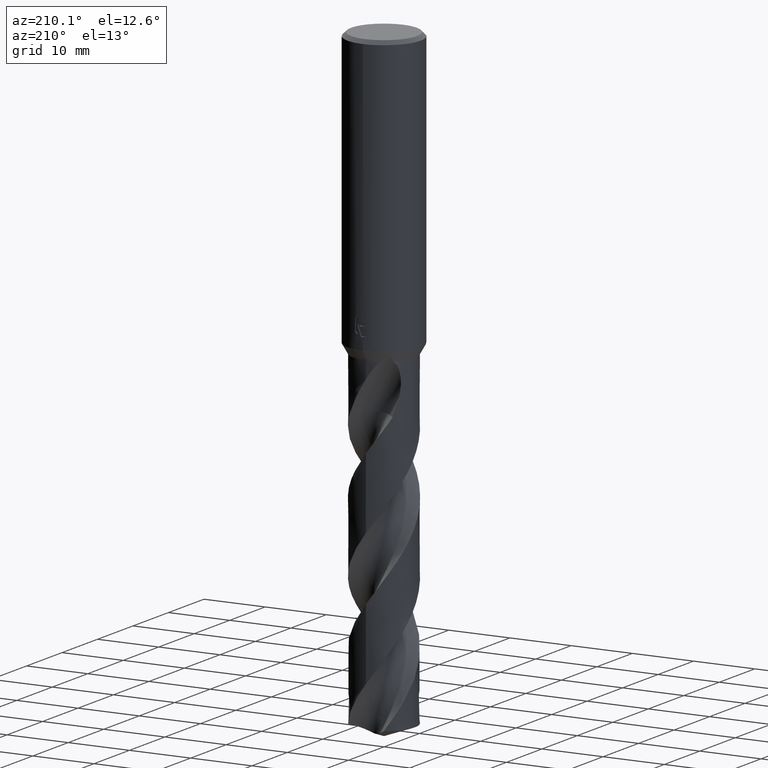
[diagram: clean part render]
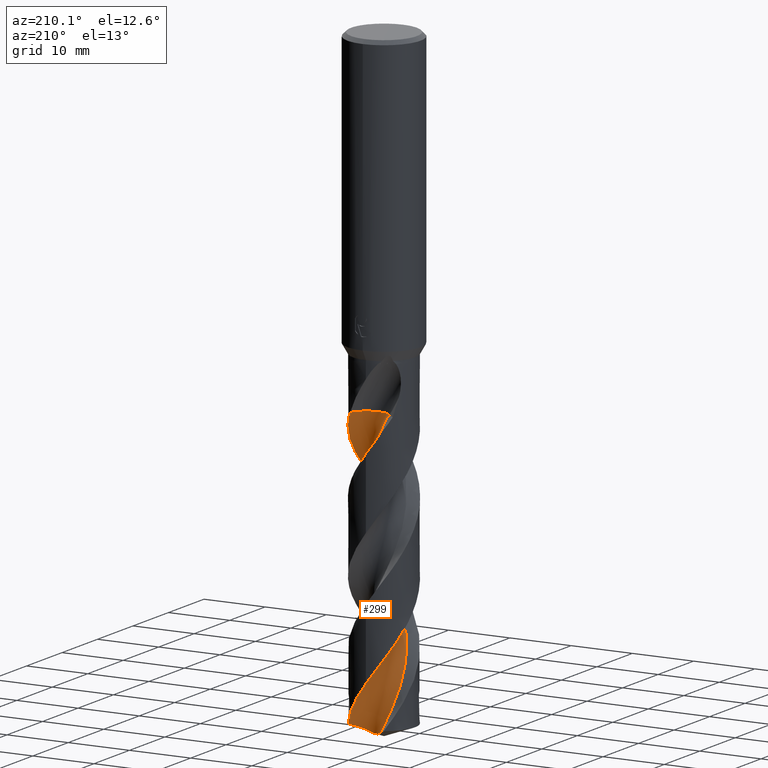
[diagram: same view with one face highlighted and labeled with its STEP entity id]
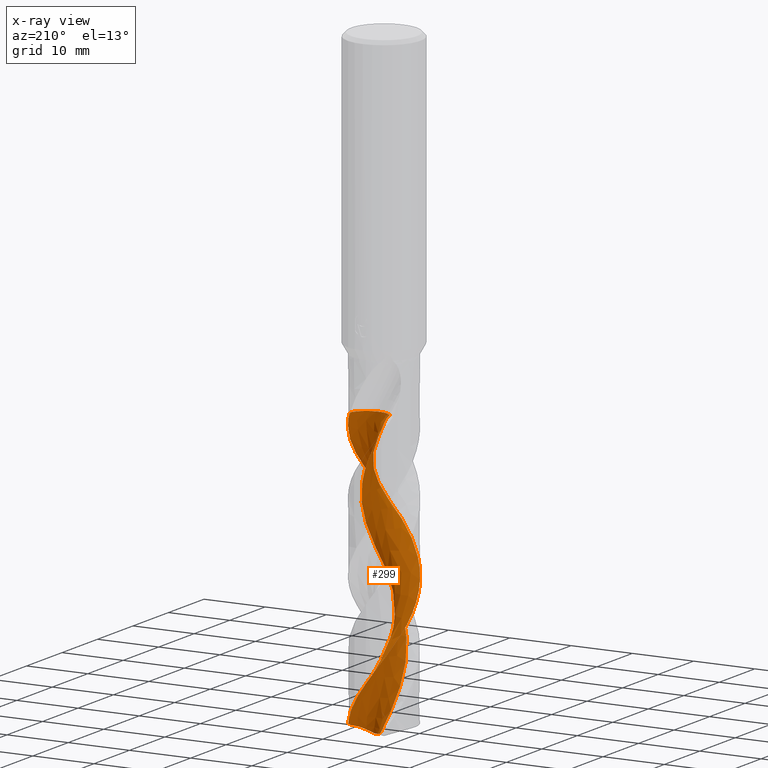
[diagram: x-ray of the same camera — body ghosted, the highlighted face saturated]
A machine part, auxiliary view. The second image highlights one B-rep face of the part: STEP entity #299.
The next image is the same camera in x-ray: the body ghosted, the highlighted face saturated — about 0% of this face is hidden behind the body in this view.
In plain terms, the highlighted face is a freeform B-spline surface patch.
Its self-contained STEP definition (entity closure, byte-faithful):
#283=EDGE_CURVE('',#597,#773,#798,.T.);
#289=EDGE_CURVE('',#733,#475,#804,.T.);
#299=ADVANCED_FACE('',(#814),#815,.F.);
#397=EDGE_CURVE('',#633,#447,#923,.T.);
#409=EDGE_CURVE('',#447,#733,#936,.T.);
#441=EDGE_CURVE('',#735,#597,#969,.T.);
#447=VERTEX_POINT('',#975);
#467=EDGE_CURVE('',#475,#735,#997,.T.);
#475=VERTEX_POINT('',#1005);
#539=VERTEX_POINT('',#1074);
#597=VERTEX_POINT('',#1137);
#633=VERTEX_POINT('',#1175);
#639=EDGE_CURVE('',#773,#539,#1183,.T.);
#675=EDGE_CURVE('',#539,#633,#1225,.T.);
#733=VERTEX_POINT('',#1290);
#735=VERTEX_POINT('',#1292);
#773=VERTEX_POINT('',#1334);
#798=B_SPLINE_CURVE_WITH_KNOTS('',3,(#1354,#1355,#1356,#1357,#1358,#1359,#1360,#1361,#1362,#1363,#1364,#1365,#1366,#1367,#1368,#1369,#1370,#1371,#1372,#1373),.UNSPECIFIED.,.F.,.F.,(4,2,2,2,2,2,2,2,2,4),(0.0,2.10448590332411,3.55116716079887,4.88574602530745,6.32300954474398,7.909793908353,9.74785458231295,11.8409802903989,13.4221875881811,15.0073987270758),.UNSPECIFIED.);
#804=CIRCLE('',#1381,3.4);
#814=FACE_OUTER_BOUND('',#1393,.T.);
#815=B_SPLINE_SURFACE_WITH_KNOTS('',3,3,((#1394,#1395,#1396,#1397,#1398,#1399,#1400,#1401,#1402,#1403,#1404,#1405,#1406,#1407,#1408,#1409,#1410,#1411,#1412,#1413,#1414,#1415,#1416,#1417,#1418,#1419,#1420,#1421,#1422,#1423,#1424,#1425,#1426,#1427,#1428,#1429,#1430,#1431,#1432,#1433,#1434,#1435,#1436,#1437,#1438,#1439,#1440,#1441,#1442,#1443,#1444,#1445,#1446,#1447,#1448,#1449),(#1450,#1451,#1452,#1453,#1454,#1455,#1456,#1457,#1458,#1459,#1460,#1461,#1462,#1463,#1464,#1465,#1466,#1467,#1468,#1469,#1470,#1471,#1472,#1473,#1474,#1475,#1476,#1477,#1478,#1479,#1480,#1481,#1482,#1483,#1484,#1485,#1486,#1487,#1488,#1489,#1490,#1491,#1492,#1493,#1494,#1495,#1496,#1497,#1498,#1499,#1500,#1501,#1502,#1503,#1504,#1505),(#1506,#1507,#1508,#1509,#1510,#1511,#1512,#1513,#1514,#1515,#1516,#1517,#1518,#1519,#1520,#1521,#1522,#1523,#1524,#1525,#1526,#1527,#1528,#1529,#1530,#1531,#1532,#1533,#1534,#1535,#1536,#1537,#1538,#1539,#1540,#1541,#1542,#1543,#1544,#1545,#1546,#1547,#1548,#1549,#1550,#1551,#1552,#1553,#1554,#1555,#1556,#1557,#1558,#1559,#1560,#1561),(#1562,#1563,#1564,#1565,#1566,#1567,#1568,#1569,#1570,#1571,#1572,#1573,#1574,#1575,#1576,#1577,#1578,#1579,#1580,#1581,#1582,#1583,#1584,#1585,#1586,#1587,#1588,#1589,#1590,#1591,#1592,#1593,#1594,#1595,#1596,#1597,#1598,#1599,#1600,#1601,#1602,#1603,#1604,#1605,#1606,#1607,#1608,#1609,#1610,#1611,#1612,#1613,#1614,#1615,#1616,#1617),(#1618,#1619,#1620,#1621,#1622,#1623,#1624,#1625,#1626,#1627,#1628,#1629,#1630,#1631,#1632,#1633,#1634,#1635,#1636,#1637,#1638,#1639,#1640,#1641,#1642,#1643,#1644,#1645,#1646,#1647,#1648,#1649,#1650,#1651,#1652,#1653,#1654,#1655,#1656,#1657,#1658,#1659,#1660,#1661,#1662,#1663,#1664,#1665,#1666,#1667,#1668,#1669,#1670,#1671,#1672,#1673),(#1674,#1675,#1676,#1677,#1678,#1679,#1680,#1681,#1682,#1683,#1684,#1685,#1686,#1687,#1688,#1689,#1690,#1691,#1692,#1693,#1694,#1695,#1696,#1697,#1698,#1699,#1700,#1701,#1702,#1703,#1704,#1705,#1706,#1707,#1708,#1709,#1710,#1711,#1712,#1713,#1714,#1715,#1716,#1717,#1718,#1719,#1720,#1721,#1722,#1723,#1724,#1725,#1726,#1727,#1728,#1729),(#1730,#1731,#1732,#1733,#1734,#1735,#1736,#1737,#1738,#1739,#1740,#1741,#1742,#1743,#1744,#1745,#1746,#1747,#1748,#1749,#1750,#1751,#1752,#1753,#1754,#1755,#1756,#1757,#1758,#1759,#1760,#1761,#1762,#1763,#1764,#1765,#1766,#1767,#1768,#1769,#1770,#1771,#1772,#1773,#1774,#1775,#1776,#1777,#1778,#1779,#1780,#1781,#1782,#1783,#1784,#1785),(#1786,#1787,#1788,#1789,#1790,#1791,#1792,#1793,#1794,#1795,#1796,#1797,#1798,#1799,#1800,#1801,#1802,#1803,#1804,#1805,#1806,#1807,#1808,#1809,#1810,#1811,#1812,#1813,#1814,#1815,#1816,#1817,#1818,#1819,#1820,#1821,#1822,#1823,#1824,#1825,#1826,#1827,#1828,#1829,#1830,#1831,#1832,#1833,#1834,#1835,#1836,#1837,#1838,#1839,#1840,#1841),(#1842,#1843,#1844,#1845,#1846,#1847,#1848,#1849,#1850,#1851,#1852,#1853,#1854,#1855,#1856,#1857,#1858,#1859,#1860,#1861,#1862,#1863,#1864,#1865,#1866,#1867,#1868,#1869,#1870,#1871,#1872,#1873,#1874,#1875,#1876,#1877,#1878,#1879,#1880,#1881,#1882,#1883,#1884,#1885,#1886,#1887,#1888,#1889,#1890,#1891,#1892,#1893,#1894,#1895,#1896,#1897),(#1898,#1899,#1900,#1901,#1902,#1903,#1904,#1905,#1906,#1907,#1908,#1909,#1910,#1911,#1912,#1913,#1914,#1915,#1916,#1917,#1918,#1919,#1920,#1921,#1922,#1923,#1924,#1925,#1926,#1927,#1928,#1929,#1930,#1931,#1932,#1933,#1934,#1935,#1936,#1937,#1938,#1939,#1940,#1941,#1942,#1943,#1944,#1945,#1946,#1947,#1948,#1949,#1950,#1951,#1952,#1953),(#1954,#1955,#1956,#1957,#1958,#1959,#1960,#1961,#1962,#1963,#1964,#1965,#1966,#1967,#1968,#1969,#1970,#1971,#1972,#1973,#1974,#1975,#1976,#1977,#1978,#1979,#1980,#1981,#1982,#1983,#1984,#1985,#1986,#1987,#1988,#1989,#1990,#1991,#1992,#1993,#1994,#1995,#1996,#1997,#1998,#1999,#2000,#2001,#2002,#2003,#2004,#2005,#2006,#2007,#2008,#2009)),.UNSPECIFIED.,.F.,.F.,.F.,(4,1,1,1,1,1,1,1,4),(4,1,2,1,2,2,2,2,2,1,2,1,2,1,2,1,2,1,2,1,2,1,2,1,2,1,2,1,2,1,2,1,2,2,4),(-1.16802619425531E-016,0.392700999111276,0.785401998222551,1.17810299733383,1.5708039964451,1.96350499555638,2.35620599466765,2.74890699377893,3.14160799289021),(0.0,1.0584556409962,2.11691128199241,3.17536692298861,4.23382256398481,6.35073384597722,8.46764512796963,10.584556409962,12.7014676919544,14.8183789739468,16.9352902559393,19.0522015379317,21.1691128199241,23.2860241019165,25.4029353839089,27.5198466659013,29.6367579478937,31.7536692298861,33.8705805118785,35.9874917938709,38.1044030758633,40.2213143578557,42.3382256398481,44.4551369218406,46.572048203833,48.6889594858254,50.8058707678178,52.9227820498102,55.0396933318026,57.156604613795,59.2735158957874,61.3904271777798,63.5073384597722,65.6242497417646,67.741161023757),.UNSPECIFIED.);
#923=B_SPLINE_CURVE_WITH_KNOTS('',3,(#3204,#3205,#3206,#3207,#3208,#3209,#3210,#3211,#3212,#3213,#3214,#3215,#3216,#3217,#3218,#3219,#3220,#3221,#3222,#3223,#3224,#3225,#3226,#3227,#3228,#3229,#3230,#3231,#3232,#3233,#3234,#3235,#3236,#3237,#3238,#3239,#3240,#3241,#3242,#3243,#3244,#3245,#3246,#3247,#3248,#3249,#3250,#3251,#3252,#3253,#3254,#3255,#3256,#3257,#3258,#3259,#3260,#3261,#3262,#3263,#3264,#3265,#3266,#3267,#3268,#3269,#3270,#3271,#3272,#3273,#3274,#3275,#3276,#3277,#3278,#3279),.UNSPECIFIED.,.F.,.F.,(4,2,2,2,2,2,2,2,2,2,2,2,2,2,2,2,2,2,2,2,2,2,2,2,2,2,2,2,2,2,2,2,2,2,2,2,2,4),(0.0,2.2659182937515,4.75245531387169,5.3748516500906,8.0506284897172,9.19276919187222,12.0115479020644,13.1936776919368,15.7151134856049,16.3273034336714,18.9527638353742,21.2121991210266,23.2901118890067,23.6378338876585,26.1641420670405,27.5471307464008,30.3821290648293,31.4751814525203,34.3067888830194,35.0076361855475,37.8405188865984,38.9978491377905,40.5468056163044,41.2564744917496,42.313640971352,45.2837343647013,45.9897149979672,50.1686012888579,52.9904123525947,53.1700650287888,53.8436807658941,54.5831018689074,55.0248506861852,55.4934853003944,55.8849521085736,56.351828900714,57.2241566725933,59.1603088884066),.UNSPECIFIED.);
#936=B_SPLINE_CURVE_WITH_KNOTS('',3,(#3297,#3298,#3299,#3300,#3301,#3302,#3303,#3304,#3305,#3306,#3307,#3308,#3309,#3310,#3311,#3312,#3313,#3314,#3315,#3316,#3317,#3318,#3319,#3320,#3321,#3322,#3323,#3324,#3325,#3326,#3327,#3328,#3329,#3330,#3331,#3332,#3333,#3334,#3335,#3336,#3337,#3338,#3339,#3340,#3341,#3342,#3343,#3344,#3345,#3346,#3347,#3348,#3349,#3350,#3351,#3352,#3353,#3354,#3355,#3356,#3357,#3358,#3359,#3360,#3361,#3362,#3363,#3364,#3365,#3366,#3367,#3368,#3369,#3370,#3371,#3372),.UNSPECIFIED.,.F.,.F.,(4,2,2,2,2,2,2,2,2,2,2,2,2,2,2,2,2,2,2,2,2,2,2,2,2,2,2,2,2,2,2,2,2,2,2,2,2,4),(0.0,2.2659182937515,4.75245531387169,5.3748516500906,8.0506284897172,9.19276919187222,12.0115479020644,13.1936776919368,15.7151134856049,16.3273034336714,18.9527638353742,21.2121991210266,23.2901118890067,23.6378338876585,26.1641420670405,27.5471307464008,30.3821290648293,31.4751814525203,34.3067888830194,35.0076361855475,37.8405188865984,38.9978491377905,40.5468056163044,41.2564744917496,42.313640971352,45.2837343647013,45.9897149979672,50.1686012888579,52.9904123525947,53.1700650287888,53.8436807658941,54.5831018689074,55.0248506861852,55.4934853003944,55.8849521085736,56.351828900714,57.2241566725933,59.1603088884066),.UNSPECIFIED.);
#969=B_SPLINE_CURVE_WITH_KNOTS('',3,(#3612,#3613,#3614,#3615,#3616,#3617,#3618,#3619,#3620,#3621,#3622,#3623,#3624,#3625,#3626,#3627,#3628,#3629,#3630,#3631,#3632,#3633,#3634,#3635,#3636,#3637,#3638,#3639,#3640,#3641,#3642,#3643,#3644,#3645,#3646,#3647,#3648,#3649,#3650,#3651,#3652,#3653,#3654,#3655,#3656,#3657,#3658,#3659,#3660,#3661,#3662,#3663,#3664,#3665,#3666,#3667),.UNSPECIFIED.,.F.,.F.,(4,1,2,1,2,2,2,2,2,1,2,1,2,1,2,1,2,1,2,1,2,1,2,1,2,1,2,1,2,1,2,1,2,2,4),(0.0,1.0584556409962,2.11691128199241,3.17536692298861,4.23382256398481,6.35073384597722,8.46764512796963,10.584556409962,12.7014676919544,14.8183789739468,16.9352902559393,19.0522015379317,21.1691128199241,23.2860241019165,25.4029353839089,27.5198466659013,29.6367579478937,31.7536692298861,33.8705805118785,35.9874917938709,38.1044030758633,40.2213143578557,42.3382256398481,44.4551369218406,46.572048203833,48.6889594858254,50.8058707678178,52.9227820498102,55.0396933318026,57.156604613795,59.2735158957874,61.3904271777798,63.5073384597722,65.6242497417646,67.741161023757),.UNSPECIFIED.);
#975=CARTESIAN_POINT('',(-4.00537581315732E-012,-5.09994624439276,-71.5760053127153));
#997=CIRCLE('',#3899,3.4);
#1005=CARTESIAN_POINT('',(-0.412014399991042,1.55504023704718,-54.7162));
#1074=CARTESIAN_POINT('',(4.20163265179172,2.89072362210531,-100.143751805242));
#1137=CARTESIAN_POINT('',(-1.18663935702709,2.99050292258315,-100.828987173046));
#1175=CARTESIAN_POINT('',(1.41461460942903E-011,5.09998733846748,-93.4149383870123));
#1183=B_SPLINE_CURVE_WITH_KNOTS('',3,(#4537,#4538,#4539,#4540,#4541,#4542,#4543,#4544,#4545,#4546,#4547,#4548,#4549,#4550,#4551,#4552,#4553,#4554,#4555,#4556),.UNSPECIFIED.,.F.,.F.,(4,2,2,2,2,2,2,2,2,4),(0.0,2.10448590332411,3.55116716079887,4.88574602530745,6.32300954474398,7.909793908353,9.74785458231295,11.8409802903989,13.4221875881811,15.0073987270758),.UNSPECIFIED.);
#1225=B_SPLINE_CURVE_WITH_KNOTS('',3,(#4655,#4656,#4657,#4658,#4659,#4660,#4661,#4662,#4663,#4664,#4665,#4666,#4667,#4668,#4669,#4670,#4671,#4672,#4673,#4674,#4675,#4676,#4677,#4678,#4679,#4680,#4681,#4682,#4683,#4684,#4685,#4686,#4687,#4688,#4689,#4690,#4691,#4692,#4693,#4694,#4695,#4696,#4697,#4698,#4699,#4700,#4701,#4702,#4703,#4704,#4705,#4706,#4707,#4708,#4709,#4710,#4711,#4712,#4713,#4714,#4715,#4716,#4717,#4718,#4719,#4720,#4721,#4722,#4723,#4724,#4725,#4726,#4727,#4728,#4729,#4730),.UNSPECIFIED.,.F.,.F.,(4,2,2,2,2,2,2,2,2,2,2,2,2,2,2,2,2,2,2,2,2,2,2,2,2,2,2,2,2,2,2,2,2,2,2,2,2,4),(0.0,2.2659182937515,4.75245531387169,5.3748516500906,8.0506284897172,9.19276919187222,12.0115479020644,13.1936776919368,15.7151134856049,16.3273034336714,18.9527638353742,21.2121991210266,23.2901118890067,23.6378338876585,26.1641420670405,27.5471307464008,30.3821290648293,31.4751814525203,34.3067888830194,35.0076361855475,37.8405188865984,38.9978491377905,40.5468056163044,41.2564744917496,42.313640971352,45.2837343647013,45.9897149979672,50.1686012888579,52.9904123525947,53.1700650287888,53.8436807658941,54.5831018689074,55.0248506861852,55.4934853003944,55.8849521085736,56.351828900714,57.2241566725933,59.1603088884066),.UNSPECIFIED.);
#1290=CARTESIAN_POINT('',(3.24976651141065,3.93041292072291,-54.7162));
#1292=CARTESIAN_POINT('',(-2.40416305596356,2.52583694403645,-54.7162));
#1334=CARTESIAN_POINT('',(-2.33257472490234E-013,1.80690421220556,-101.342340650587));
#1354=CARTESIAN_POINT('',(-1.18663935702669,2.99050292258317,-100.828987173046));
#1355=CARTESIAN_POINT('',(-0.785578345438125,2.46380595640978,-101.061013094624));
#1356=CARTESIAN_POINT('',(-0.315918123410247,2.0318919300785,-101.269139282697));
#1357=CARTESIAN_POINT('',(0.400633147928761,1.51691355724653,-101.439816436332));
#1358=CARTESIAN_POINT('',(0.668748683101502,1.3654760311722,-101.456066693813));
#1359=CARTESIAN_POINT('',(1.18758150287579,1.16087208953736,-101.402903983679));
#1360=CARTESIAN_POINT('',(1.43992902004803,1.10298350009198,-101.342070095764));
#1361=CARTESIAN_POINT('',(1.97193459382948,1.0755000572694,-101.184570867197));
#1362=CARTESIAN_POINT('',(2.25852871772994,1.11257542680498,-101.083717970087));
#1363=CARTESIAN_POINT('',(2.85939400180386,1.31955050730527,-100.85387248431));
#1364=CARTESIAN_POINT('',(3.14795647423994,1.49399195669558,-100.732136567484));
#1365=CARTESIAN_POINT('',(3.68891654552445,1.97506366397093,-100.477443565222));
#1366=CARTESIAN_POINT('',(3.92332880595568,2.29343135205969,-100.347615845308));
#1367=CARTESIAN_POINT('',(4.29188290997304,3.05214766494503,-100.085028081358));
#1368=CARTESIAN_POINT('',(4.404628579065,3.49657652972885,-99.956420630017));
#1369=CARTESIAN_POINT('',(4.45859902035654,4.29584134689613,-99.7482298041253));
#1370=CARTESIAN_POINT('',(4.4349135325438,4.64364662383337,-99.6650289884185));
#1371=CARTESIAN_POINT('',(4.29922809166764,5.3270514516296,-99.5104765722837));
#1372=CARTESIAN_POINT('',(4.18731080489296,5.66114408520853,-99.4394979168756));
#1373=CARTESIAN_POINT('',(4.0352541058196,5.97802009878406,-99.3748686278432));
#1381=AXIS2_PLACEMENT_3D('',#5341,#5342,#5343);
#1393=EDGE_LOOP('',(#5351,#5352,#5353,#5354,#5355,#5356,#5357,#5358));
#1394=CARTESIAN_POINT('',(2.40416305596355,7.33416305596355,-54.7162));
#1395=CARTESIAN_POINT('',(2.65709224455337,7.3157544318808,-54.9619883838942));
#1396=CARTESIAN_POINT('',(3.16870411540748,7.22592464264196,-55.4576897988237));
#1397=CARTESIAN_POINT('',(3.6734820252739,6.99414529279835,-55.9549311755855));
#1398=CARTESIAN_POINT('',(4.15512365168478,6.67618245775551,-56.4443568195277));
#1399=CARTESIAN_POINT('',(4.61719436341909,6.34303491659236,-56.9323186393156));
#1400=CARTESIAN_POINT('',(5.04740047407196,5.98907253702698,-57.4236850504807));
#1401=CARTESIAN_POINT('',(5.67097569007555,5.44700941640612,-58.1668501689171));
#1402=CARTESIAN_POINT('',(6.04723078524585,5.03686824076888,-58.6616670264124));
#1403=CARTESIAN_POINT('',(6.69173234002055,4.12659998931264,-59.6439517886961));
#1404=CARTESIAN_POINT('',(6.96783283971769,3.64038024102274,-60.1357044509286));
#1405=CARTESIAN_POINT('',(7.41230024620554,2.62144262767866,-61.1222413464048));
#1406=CARTESIAN_POINT('',(7.58107024114078,2.0894047276893,-61.6151284141142));
#1407=CARTESIAN_POINT('',(7.79907284836723,0.998829308752349,-62.5997813947954));
#1408=CARTESIAN_POINT('',(7.85125534432161,0.442426887896436,-63.0924005193335));
#1409=CARTESIAN_POINT('',(7.83113497558811,-0.670801652866133,-64.0778111294575));
#1410=CARTESIAN_POINT('',(7.69825640485356,-1.77903960255668,-65.0626643471477));
#1411=CARTESIAN_POINT('',(7.33651261938756,-2.83596524275772,-66.0485816696228));
#1412=CARTESIAN_POINT('',(6.85781567946793,-3.84174188570839,-67.0336774915473));
#1413=CARTESIAN_POINT('',(6.27859903220601,-4.79627470816725,-68.0181689571326));
#1414=CARTESIAN_POINT('',(5.51282228181493,-5.60984397746329,-69.003992873854));
#1415=CARTESIAN_POINT('',(4.66199992928391,-6.32872982084552,-69.9892613292843));
#1416=CARTESIAN_POINT('',(3.74070316571654,-6.95940632809538,-70.9738993464102));
#1417=CARTESIAN_POINT('',(2.70753548785533,-7.38455302265582,-71.9597437516913));
#1418=CARTESIAN_POINT('',(1.63592164589502,-7.6883521163569,-72.9449514252332));
#1419=CARTESIAN_POINT('',(0.53649545604536,-7.8827602647672,-73.9295440967437));
#1420=CARTESIAN_POINT('',(-0.580064039514625,-7.84382991666162,-74.9153856983103));
#1421=CARTESIAN_POINT('',(-1.68157854764112,-7.67848529535367,-75.9006120174695));
#1422=CARTESIAN_POINT('',(-2.76328981126337,-7.40200994773752,-76.885217097495));
#1423=CARTESIAN_POINT('',(-3.76433513003697,-6.9059127837903,-77.8710588003406));
#1424=CARTESIAN_POINT('',(-4.69952955451935,-6.30087777026626,-78.8562807530354));
#1425=CARTESIAN_POINT('',(-5.57084319215515,-5.6027802997551,-79.8408833734481));
#1426=CARTESIAN_POINT('',(-6.27807482717549,-4.73789499305141,-80.826724565098));
#1427=CARTESIAN_POINT('',(-6.88037661795695,-3.80093696420032,-81.8119458723594));
#1428=CARTESIAN_POINT('',(-7.38609479254166,-2.80555881309275,-82.7965481016668));
#1429=CARTESIAN_POINT('',(-7.67353810134094,-1.72593916512739,-83.782390756016));
#1430=CARTESIAN_POINT('',(-7.83566392624466,-0.623954362749503,-84.7676150292724));
#1431=CARTESIAN_POINT('',(-7.88570463782038,0.49140372462436,-85.7522179766004));
#1432=CARTESIAN_POINT('',(-7.70215450108022,1.5934557667892,-86.7380525618363));
#1433=CARTESIAN_POINT('',(-7.39522262143149,2.66418596926375,-87.7232627607056));
#1434=CARTESIAN_POINT('',(-6.98067286628361,3.70086321079617,-88.7078629018431));
#1435=CARTESIAN_POINT('',(-6.35880489690473,4.62903698372493,-89.6937268173907));
#1436=CARTESIAN_POINT('',(-5.63744677963558,5.4777483430382,-90.678984803996));
#1437=CARTESIAN_POINT('',(-4.83212547143661,6.25102007116712,-91.6635925147358));
#1438=CARTESIAN_POINT('',(-3.88281093461899,6.84003059485425,-92.6493647337279));
#1439=CARTESIAN_POINT('',(-2.8756920926789,7.31575060373574,-93.6344786156766));
#1440=CARTESIAN_POINT('',(-1.82305737235658,7.68810047326367,-94.6190652123804));
#1441=CARTESIAN_POINT('',(-0.715017029861006,7.83258435263518,-95.6050973027484));
#1442=CARTESIAN_POINT('',(0.398934109154412,7.84948551567109,-96.5906148165187));
#1443=CARTESIAN_POINT('',(1.51119541447053,7.75389049249511,-97.5753058786868));
#1444=CARTESIAN_POINT('',(2.5798765883342,7.43042146409729,-98.5608471895587));
#1445=CARTESIAN_POINT('',(3.60187810461693,6.98995203594288,-99.5455896410573));
#1446=CARTESIAN_POINT('',(4.08930829776231,6.71659230918825,-100.038011550294));
#1447=CARTESIAN_POINT('',(4.99348750402325,6.06779637604903,-101.022927750755));
#1448=CARTESIAN_POINT('',(5.41178936417184,5.70137782360298,-101.514534440248));
#1449=CARTESIAN_POINT('',(5.79053905044729,5.29942949940565,-102.006912563355));
#1450=CARTESIAN_POINT('',(2.71885547865695,7.01944399006192,-54.7161999999997));
#1451=CARTESIAN_POINT('',(2.9712552096983,7.00050595355236,-54.9619729348531));
#1452=CARTESIAN_POINT('',(3.47514397968678,6.90273042720417,-55.4581189743825));
#1453=CARTESIAN_POINT('',(3.95699703064321,6.65047871921215,-55.9559474457647));
#1454=CARTESIAN_POINT('',(4.40630526368486,6.30822079952262,-56.4449001716482));
#1455=CARTESIAN_POINT('',(4.83703729649001,5.95493750652106,-56.9322118146168));
#1456=CARTESIAN_POINT('',(5.23907283966516,5.58713910809663,-57.4234203753817));
#1457=CARTESIAN_POINT('',(5.82288304299804,5.02767560720242,-58.1671881202388));
#1458=CARTESIAN_POINT('',(6.16992208314726,4.60782033973965,-58.6623056095926));
#1459=CARTESIAN_POINT('',(6.75079909587838,3.68428062696016,-59.6441778286486));
#1460=CARTESIAN_POINT('',(6.99538124687337,3.19506091333287,-60.1358127937299));
#1461=CARTESIAN_POINT('',(7.37696500896089,2.17667384165799,-61.1225336050888));
#1462=CARTESIAN_POINT('',(7.5145108160941,1.64821148283086,-61.6154586227938));
#1463=CARTESIAN_POINT('',(7.67073504626703,0.571499451651741,-62.6000322057628));
#1464=CARTESIAN_POINT('',(7.69301340323306,0.0252264042216115,-63.0926525774141));
#1465=CARTESIAN_POINT('',(7.61501961709192,-1.0611740614165,-64.0780895057713));
#1466=CARTESIAN_POINT('',(7.42836180613429,-2.13701365146237,-65.0628914967817));
#1467=CARTESIAN_POINT('',(7.02054186978011,-3.15103588411115,-66.0489054258579));
#1468=CARTESIAN_POINT('',(6.49995450655716,-4.10827917824321,-67.0339836585393));
#1469=CARTESIAN_POINT('',(5.88500942709478,-5.01094489127604,-68.0183736227244));
#1470=CARTESIAN_POINT('',(5.09498547091586,-5.76642420633543,-69.0042812130092));
#1471=CARTESIAN_POINT('',(4.22605098906006,-6.42387801011189,-69.9895561331427));
#1472=CARTESIAN_POINT('',(3.29360855251275,-6.99259966942932,-70.9741129932085));
#1473=CARTESIAN_POINT('',(2.26231511141286,-7.35481944036201,-71.960043937487));
#1474=CARTESIAN_POINT('',(1.19954662417065,-7.59517580769408,-72.9452495764523));
#1475=CARTESIAN_POINT('',(0.11552824890684,-7.72854669890825,-73.9297548248837));
#1476=CARTESIAN_POINT('',(-0.973364752586178,-7.63306985567374,-74.9156825488465));
#1477=CARTESIAN_POINT('',(-2.04064890356913,-7.41358259059186,-75.9009094586892));
#1478=CARTESIAN_POINT('',(-3.08314353761812,-7.08786207738203,-76.8854288282946));
#1479=CARTESIAN_POINT('',(-4.03565818430268,-6.55166850846581,-77.8713566543989));
#1480=CARTESIAN_POINT('',(-4.91733584344323,-5.91143543408428,-78.8565786070936));
#1481=CARTESIAN_POINT('',(-5.73261100094276,-5.18465785637092,-79.8410951423168));
#1482=CARTESIAN_POINT('',(-6.37909306237353,-4.30326809180569,-80.8270223990073));
#1483=CARTESIAN_POINT('',(-6.9181234086041,-3.35632467260033,-81.8122436406372));
#1484=CARTESIAN_POINT('',(-7.36096209297478,-2.35793893312687,-82.7967597891591));
#1485=CARTESIAN_POINT('',(-7.58625764042279,-1.28834650901511,-83.7826886830758));
#1486=CARTESIAN_POINT('',(-7.68662779677344,-0.203367690793845,-84.7679132188582));
#1487=CARTESIAN_POINT('',(-7.67814799600112,0.888789570843291,-85.7524299789842));
#1488=CARTESIAN_POINT('',(-7.44212123750556,1.9560683963657,-86.7383497402744));
#1489=CARTESIAN_POINT('',(-7.08594933822442,2.98583012588851,-87.7235586265137));
#1490=CARTESIAN_POINT('',(-6.62766254443421,3.97723081373415,-88.7080729173077));
#1491=CARTESIAN_POINT('',(-5.97233548287929,4.85207690636367,-89.6940258631978));
#1492=CARTESIAN_POINT('',(-5.22302205299285,5.64314870972672,-90.6792877876933));
#1493=CARTESIAN_POINT('',(-4.39653902004118,6.35712957185035,-91.6638079750001));
#1494=CARTESIAN_POINT('',(-3.43874929819268,6.88377609473842,-92.649657265587));
#1495=CARTESIAN_POINT('',(-2.42994149512302,7.29548922524851,-93.6347602527061));
#1496=CARTESIAN_POINT('',(-1.38247889289621,7.60509954729728,-94.6192664020527));
#1497=CARTESIAN_POINT('',(-0.29246856422303,7.68919137127053,-95.6054083763207));
#1498=CARTESIAN_POINT('',(0.796547230210228,7.64697070724131,-96.5909503050106));
#1499=CARTESIAN_POINT('',(1.87817838815448,7.49639350025273,-97.5755367592738));
#1500=CARTESIAN_POINT('',(2.90574828945736,7.12562565895088,-98.561119807203));
#1501=CARTESIAN_POINT('',(3.88105252286383,6.64187988342642,-99.5458353497849));
#1502=CARTESIAN_POINT('',(4.343067150476,6.34956705376776,-100.038271931818));
#1503=CARTESIAN_POINT('',(5.1921958651809,5.66827696288973,-101.023247725685));
#1504=CARTESIAN_POINT('',(5.58231430927603,5.28917626353479,-101.51477608991));
#1505=CARTESIAN_POINT('',(5.93247855486218,4.87760901889488,-102.00717836541));
#1506=CARTESIAN_POINT('',(3.22295549838399,6.26499673908634,-54.7162));
#1507=CARTESIAN_POINT('',(3.47408601046751,6.24521064879678,-54.9619475237671));
#1508=CARTESIAN_POINT('',(3.95937209369111,6.13461824437987,-55.4588248295816));
#1509=CARTESIAN_POINT('',(4.38724440644396,5.85054609195832,-55.9576188847719));
#1510=CARTESIAN_POINT('',(4.76223784837445,5.47256655116133,-56.4457938079608));
#1511=CARTESIAN_POINT('',(5.12229834674266,5.09148274253434,-56.9320361186478));
#1512=CARTESIAN_POINT('',(5.46250263572946,4.70722043442519,-57.4229850804673));
#1513=CARTESIAN_POINT('',(5.95987995028938,4.12877662904769,-58.1677439206969));
#1514=CARTESIAN_POINT('',(6.24463637341032,3.70111514373613,-58.6633558676411));
#1515=CARTESIAN_POINT('',(6.69301345444294,2.77633948379575,-59.6445495966002));
#1516=CARTESIAN_POINT('',(6.87337920139768,2.2936548594272,-60.1359909874231));
#1517=CARTESIAN_POINT('',(7.12944113913791,1.30137505192979,-61.1230142715471));
#1518=CARTESIAN_POINT('',(7.20597351674383,0.792479004541035,-61.6160017042409));
#1519=CARTESIAN_POINT('',(7.2441800288908,-0.231945067944301,-62.6004447141164));
#1520=CARTESIAN_POINT('',(7.21069073595421,-0.746071858929399,-63.0930671182354));
#1521=CARTESIAN_POINT('',(7.02764306981269,-1.75581330268988,-64.0785473583389));
#1522=CARTESIAN_POINT('',(6.74633306242159,-2.74548379598655,-65.0632651015484));
#1523=CARTESIAN_POINT('',(6.26344128398799,-3.65539446164139,-66.0494378531085));
#1524=CARTESIAN_POINT('',(5.67839070868299,-4.49893324195365,-67.0344872516875));
#1525=CARTESIAN_POINT('',(5.01262945244343,-5.28367864317381,-68.0187102141051));
#1526=CARTESIAN_POINT('',(4.19722157400263,-5.91336026359754,-69.0047554255133));
#1527=CARTESIAN_POINT('',(3.31649967236863,-6.44077337961658,-69.9900410026928));
#1528=CARTESIAN_POINT('',(2.38640784667063,-6.8811791683021,-70.9744644000047));
#1529=CARTESIAN_POINT('',(1.38388577647379,-7.11831689155888,-71.9605375803716));
#1530=CARTESIAN_POINT('',(0.364033129933791,-7.23533202466608,-72.9457400048378));
#1531=CARTESIAN_POINT('',(-0.664903775571627,-7.25278121437172,-73.9301013897684));
#1532=CARTESIAN_POINT('',(-1.67598900749058,-7.05523715200185,-74.9161707360951));
#1533=CARTESIAN_POINT('',(-2.6532962888725,-6.74109953626924,-75.9013986895692));
#1534=CARTESIAN_POINT('',(-3.5977911611934,-6.33250449305807,-76.8857770274971));
#1535=CARTESIAN_POINT('',(-4.43732003563871,-5.73543384225074,-77.8718465514178));
#1536=CARTESIAN_POINT('',(-5.19798972101525,-5.04610112349513,-78.8570684576591));
#1537=CARTESIAN_POINT('',(-5.88980645223989,-4.28425988099464,-79.8414434454196));
#1538=CARTESIAN_POINT('',(-6.40825177836988,-3.39402607382686,-80.8275122395312));
#1539=CARTESIAN_POINT('',(-6.81679499425196,-2.45227672131548,-81.8127333734889));
#1540=CARTESIAN_POINT('',(-7.13270520667119,-1.47288205907862,-82.7971079291403));
#1541=CARTESIAN_POINT('',(-7.23771886069047,-0.448053701026812,-83.7831787120332));
#1542=CARTESIAN_POINT('',(-7.22136631162054,0.57836234483676,-84.7684036093886));
#1543=CARTESIAN_POINT('',(-7.10509628804985,1.60085621206551,-85.7527786549828));
#1544=CARTESIAN_POINT('',(-6.77796639883815,2.57773524676808,-86.7388385370412));
#1545=CARTESIAN_POINT('',(-6.33962684892592,3.50599631648617,-87.7240451961317));
#1546=CARTESIAN_POINT('',(-5.81188927167579,4.38947029793248,-88.7084182935505));
#1547=CARTESIAN_POINT('',(-5.11086452985614,5.14437811394825,-89.6945177940169));
#1548=CARTESIAN_POINT('',(-4.32857341532741,5.80907817355892,-90.6797860011063));
#1549=CARTESIAN_POINT('',(-3.4833536742476,6.39608706443409,-91.6641624128929));
#1550=CARTESIAN_POINT('',(-2.53341701249766,6.79466162290085,-92.6501383324283));
#1551=CARTESIAN_POINT('',(-1.54668519751207,7.07771621691383,-93.635223508376));
#1552=CARTESIAN_POINT('',(-0.53451391275476,7.2639307084542,-94.6195972328759));
#1553=CARTESIAN_POINT('',(0.495428298982956,7.23443367718168,-95.6059200608248));
#1554=CARTESIAN_POINT('',(1.51107333849046,7.08391013585594,-96.5915020064398));
#1555=CARTESIAN_POINT('',(2.50959262145051,6.83557221325898,-97.5759164727444));
#1556=CARTESIAN_POINT('',(3.43614834659687,6.38657512690723,-98.5615682652816));
#1557=CARTESIAN_POINT('',(4.30086818277351,5.83486466592229,-99.5462393712866));
#1558=CARTESIAN_POINT('',(4.70452546531906,5.51476045616922,-100.038700086822));
#1559=CARTESIAN_POINT('',(5.43065463943135,4.79038729065086,-101.023774069761));
#1560=CARTESIAN_POINT('',(5.75937484189209,4.39713519729074,-101.515173354488));
#1561=CARTESIAN_POINT('',(6.04855519428172,3.97770151972315,-102.007615524025));
#1562=CARTESIAN_POINT('',(3.4885122134362,4.93000345458997,-54.7161999999997));
#1563=CARTESIAN_POINT('',(3.73739684467053,4.90977061361303,-54.9619316617852));
#1564=CARTESIAN_POINT('',(4.18954325231377,4.7920939424417,-55.4592654653785));
#1565=CARTESIAN_POINT('',(4.52433688513842,4.49490672532705,-55.9586622933982));
#1566=CARTESIAN_POINT('',(4.77582765915568,4.11008118963596,-56.4463516686536));
#1567=CARTESIAN_POINT('',(5.02198268232338,3.73103762403978,-56.9319264410616));
#1568=CARTESIAN_POINT('',(5.26704202224038,3.35945148211944,-57.4227133390198));
#1569=CARTESIAN_POINT('',(5.63373341319324,2.80431941796981,-58.1680908937388));
#1570=CARTESIAN_POINT('',(5.82768939394876,2.4015915716452,-58.6640115069949));
#1571=CARTESIAN_POINT('',(6.09172064099762,1.55116570959836,-59.6447816686476));
#1572=CARTESIAN_POINT('',(6.18683826088654,1.11440183935915,-60.1361022225207));
#1573=CARTESIAN_POINT('',(6.28392225234475,0.23036091660585,-61.1233143353051));
#1574=CARTESIAN_POINT('',(6.28712618556517,-0.216392731845621,-61.6163407191209));
#1575=CARTESIAN_POINT('',(6.1917839968223,-1.10060069520347,-62.6007022340073));
#1576=CARTESIAN_POINT('',(6.0994581503056,-1.53816139112408,-63.0933258964924));
#1577=CARTESIAN_POINT('',(5.81481901915086,-2.38135214523709,-64.0788331788093));
#1578=CARTESIAN_POINT('',(5.45179302418915,-3.19726263386467,-65.0634983170838));
#1579=CARTESIAN_POINT('',(4.92462208192355,-3.91978658095514,-66.0497702435688));
#1580=CARTESIAN_POINT('',(4.31550211306695,-4.56873315114495,-67.0348016054652));
#1581=CARTESIAN_POINT('',(3.6470055927216,-5.16087766019551,-68.0189203404304));
#1582=CARTESIAN_POINT('',(2.86863160286604,-5.60164044421767,-69.0050514621592));
#1583=CARTESIAN_POINT('',(2.04622333239507,-5.94205918393899,-69.9903436808883));
#1584=CARTESIAN_POINT('',(1.19304938183325,-6.20597711359703,-70.9746837631527));
#1585=CARTESIAN_POINT('',(0.302206037238251,-6.2862757403287,-71.9608457574469));
#1586=CARTESIAN_POINT('',(-0.587363764942178,-6.25698405289028,-72.9460461423281));
#1587=CARTESIAN_POINT('',(-1.47341621486385,-6.14539317631984,-73.9303177372422));
#1588=CARTESIAN_POINT('',(-2.31807322964844,-5.85105643673648,-74.9164755044388));
#1589=CARTESIAN_POINT('',(-3.11634432546705,-5.45739117189074,-75.9017040825135));
#1590=CARTESIAN_POINT('',(-3.87744363600981,-4.99019460568358,-76.885994414734));
#1591=CARTESIAN_POINT('',(-4.52543523926793,-4.37361204706381,-77.8721523450243));
#1592=CARTESIAN_POINT('',(-5.0902101371545,-3.68569539470165,-78.8573742795188));
#1593=CARTESIAN_POINT('',(-5.59079332346999,-2.94612995719928,-79.8416608693383));
#1594=CARTESIAN_POINT('',(-5.92671131546578,-2.11713853806585,-80.82781801219));
#1595=CARTESIAN_POINT('',(-6.15738978423614,-1.25749430504988,-81.8130391075411));
#1596=CARTESIAN_POINT('',(-6.30828742105609,-0.377283666324045,-82.7973252520348));
#1597=CARTESIAN_POINT('',(-6.27229528729244,0.516456680610348,-83.783484615024));
#1598=CARTESIAN_POINT('',(-6.1277909723128,1.39470368558643,-84.7687097413119));
#1599=CARTESIAN_POINT('',(-5.90212132677987,2.25877139909779,-85.7529963568723));
#1600=CARTESIAN_POINT('',(-5.50062274018148,3.05806448657423,-86.7391435947237));
#1601=CARTESIAN_POINT('',(-5.0066709866188,3.79848386892005,-87.7243490189027));
#1602=CARTESIAN_POINT('',(-4.44463489910261,4.49251018861774,-88.7086338573733));
#1603=CARTESIAN_POINT('',(-3.74912699404367,5.05495869798508,-89.6948248884395));
#1604=CARTESIAN_POINT('',(-2.99367496297109,5.52558510715978,-90.6800970123503));
#1605=CARTESIAN_POINT('',(-2.19537607332128,5.92586336369535,-91.664383666185));
#1606=CARTESIAN_POINT('',(-1.32984313338126,6.15144679119383,-92.6504386598987));
#1607=CARTESIAN_POINT('',(-0.447563912386229,6.26886204636511,-93.63551268198));
#1608=CARTESIAN_POINT('',(0.444860190136349,6.30431716930602,-94.6198037807283));
#1609=CARTESIAN_POINT('',(1.3263462065078,6.15187580077181,-95.6062394536236));
#1610=CARTESIAN_POINT('',(2.17813276371842,5.89337029678218,-96.5918464410252));
#1611=CARTESIAN_POINT('',(3.00534465163522,5.55725317324781,-97.5761535133041));
#1612=CARTESIAN_POINT('',(3.74699379291959,5.05782295691854,-98.5618481858518));
#1613=CARTESIAN_POINT('',(4.41943576193173,4.47539922481979,-99.5464916180986));
#1614=CARTESIAN_POINT('',(4.72625994647301,4.15027817727765,-100.03896741246));
#1615=CARTESIAN_POINT('',(5.25718804447372,3.43680283657927,-101.024102597993));
#1616=CARTESIAN_POINT('',(5.49269071327914,3.05918372898796,-101.515421401669));
#1617=CARTESIAN_POINT('',(5.69283569929747,2.66385563645683,-102.00788842387));
#1618=CARTESIAN_POINT('',(3.22297225515765,3.5950068369463,-54.7162));
#1619=CARTESIAN_POINT('',(3.46961100114392,3.57522071535929,-54.9619404706351));
#1620=CARTESIAN_POINT('',(3.88842923049403,3.46368123113492,-55.459020769007));
#1621=CARTESIAN_POINT('',(4.13221268860793,3.18999605022989,-55.9580828631981));
#1622=CARTESIAN_POINT('',(4.26698049834793,2.84610892135276,-56.4460418743002));
#1623=CARTESIAN_POINT('',(4.40868067831771,2.51254071566062,-56.9319873496999));
#1624=CARTESIAN_POINT('',(4.57068892392212,2.18907616854094,-57.4228642403498));
#1625=CARTESIAN_POINT('',(4.82556327749448,1.7054929919225,-58.1678982178697));
#1626=CARTESIAN_POINT('',(4.94517305606944,1.36054810122056,-58.6636474196579));
#1627=CARTESIAN_POINT('',(5.06734305956203,0.649359445298498,-59.6446527878368));
#1628=CARTESIAN_POINT('',(5.10127496369589,0.287644020303071,-60.1360404508681));
#1629=CARTESIAN_POINT('',(5.09290409694359,-0.435558922710203,-61.1231477025062));
#1630=CARTESIAN_POINT('',(5.05214240553908,-0.796838896724611,-61.6161524533099));
#1631=CARTESIAN_POINT('',(4.88707598499963,-1.50039697325735,-62.6005592292706));
#1632=CARTESIAN_POINT('',(4.76969298690246,-1.84470398114455,-63.0931821696288));
#1633=CARTESIAN_POINT('',(4.45493213939773,-2.49514459959856,-64.078674476496));
#1634=CARTESIAN_POINT('',(4.08290582904904,-3.11925031342528,-65.0633687981315));
#1635=CARTESIAN_POINT('',(3.5865363811261,-3.6517067900235,-66.0495856551974));
#1636=CARTESIAN_POINT('',(3.02964673938771,-4.11166270735044,-67.0346270407251));
#1637=CARTESIAN_POINT('',(2.43232872955876,-4.52482046537907,-68.0188036456652));
#1638=CARTESIAN_POINT('',(1.76046593014582,-4.80521753071888,-69.0048870747819));
#1639=CARTESIAN_POINT('',(1.06349233523118,-4.99519188649222,-69.9901755870706));
#1640=CARTESIAN_POINT('',(0.348920547002543,-5.12549167243861,-70.9745619635887));
#1641=CARTESIAN_POINT('',(-0.378725296287131,-5.10362781843777,-71.9606745917245));
#1642=CARTESIAN_POINT('',(-1.09194009841726,-4.98902364023384,-72.9458761639362));
#1643=CARTESIAN_POINT('',(-1.7966027903209,-4.81289511847456,-73.930197575899));
#1644=CARTESIAN_POINT('',(-2.45045930373052,-4.49282325713401,-74.9163062681367));
#1645=CARTESIAN_POINT('',(-3.05288859103181,-4.09419857669824,-75.9015344811277));
#1646=CARTESIAN_POINT('',(-3.62212659682476,-3.64304405962826,-76.8858737115345));
#1647=CARTESIAN_POINT('',(-4.08569414069613,-3.08173328867219,-77.8719825047202));
#1648=CARTESIAN_POINT('',(-4.47002790192879,-2.47009091977463,-78.8572044745874));
#1649=CARTESIAN_POINT('',(-4.80245897750449,-1.82428792428821,-79.8415401120303));
#1650=CARTESIAN_POINT('',(-4.99318046826444,-1.12172746761175,-80.8276482163623));
#1651=CARTESIAN_POINT('',(-5.09095384184549,-0.406004598671928,-81.8128693185322));
#1652=CARTESIAN_POINT('',(-5.12735605439966,0.319424058128427,-82.7972045827655));
#1653=CARTESIAN_POINT('',(-5.01125712828732,1.03809426493344,-83.7833147157754));
#1654=CARTESIAN_POINT('',(-4.80505817102537,1.73040924346895,-84.7685397623933));
#1655=CARTESIAN_POINT('',(-4.53894386683251,2.40624467836455,-85.7528754278352));
#1656=CARTESIAN_POINT('',(-4.13669707740479,3.01301017098473,-86.7389742324418));
#1657=CARTESIAN_POINT('',(-3.66325062190653,3.55860463546341,-87.724180254773));
#1658=CARTESIAN_POINT('',(-3.14202568202727,4.06447862537705,-88.7085141841587));
#1659=CARTESIAN_POINT('',(-2.52526593009145,4.45122936862878,-89.6946543256708));
#1660=CARTESIAN_POINT('',(-1.86887904191298,4.75282614989586,-90.6799243257139));
#1661=CARTESIAN_POINT('',(-1.18538844479129,4.99854375255394,-91.664260809645));
#1662=CARTESIAN_POINT('',(-0.464035382088408,5.09660444009965,-92.6502718332003));
#1663=CARTESIAN_POINT('',(0.25835459779864,5.10096145099202,-93.6353521441069));
#1664=CARTESIAN_POINT('',(0.982453338785649,5.04295861126057,-94.6196890230136));
#1665=CARTESIAN_POINT('',(1.67973497938875,4.83374358330882,-95.6060621526473));
#1666=CARTESIAN_POINT('',(2.33881311930797,4.53818200418715,-96.5916551022141));
#1667=CARTESIAN_POINT('',(2.97416577543482,4.18652433319177,-97.5760218898102));
#1668=CARTESIAN_POINT('',(3.52568367693357,3.71126098608653,-98.5616927827508));
#1669=CARTESIAN_POINT('',(4.00873066193867,3.17404381897597,-99.5463514954649));
#1670=CARTESIAN_POINT('',(4.22417292510271,2.88134439393103,-100.03881897827));
#1671=CARTESIAN_POINT('',(4.57892939769684,2.25263781464742,-101.023920139749));
#1672=CARTESIAN_POINT('',(4.73429276859542,1.92513472601862,-101.515283673201));
#1673=CARTESIAN_POINT('',(4.86140473967604,1.58614975126408,-102.00773687582));
#1674=CARTESIAN_POINT('',(2.46676206475924,2.46324997856272,-54.7162000000001));
#1675=CARTESIAN_POINT('',(2.71149683751987,2.44473604575836,-54.9619726091092));
#1676=CARTESIAN_POINT('',(3.10187234418171,2.35162085264567,-55.4581279949105));
#1677=CARTESIAN_POINT('',(3.27056976148255,2.13447679495209,-55.9559688055806));
#1678=CARTESIAN_POINT('',(3.31316446535698,1.87307992908403,-56.4449115911725));
#1679=CARTESIAN_POINT('',(3.37576291238764,1.62149891425863,-56.9322095683011));
#1680=CARTESIAN_POINT('',(3.47945781010038,1.37427523513385,-57.4234148152085));
#1681=CARTESIAN_POINT('',(3.6584073050029,0.999585342199397,-58.1671952178645));
#1682=CARTESIAN_POINT('',(3.73144375138958,0.736475668530233,-58.6623190281891));
#1683=CARTESIAN_POINT('',(3.7758344301249,0.208213866151402,-59.6441825822576));
#1684=CARTESIAN_POINT('',(3.78195808472373,-0.0607509877890082,-60.1358150767097));
#1685=CARTESIAN_POINT('',(3.73771012788427,-0.595003243094948,-61.1225397417459));
#1686=CARTESIAN_POINT('',(3.68903907560925,-0.86049097921211,-61.6154655651437));
#1687=CARTESIAN_POINT('',(3.5286878744972,-1.37046794844414,-62.6000374749871));
#1688=CARTESIAN_POINT('',(3.42384189449036,-1.61903086207195,-63.0926578586377));
#1689=CARTESIAN_POINT('',(3.15501487076663,-2.0798666156854,-64.0780953729466));
#1690=CARTESIAN_POINT('',(2.84807416169087,-2.52332362899642,-65.0628962728526));
#1691=CARTESIAN_POINT('',(2.45289755026748,-2.89196819125656,-66.0489122100746));
#1692=CARTESIAN_POINT('',(2.01658631218208,-3.1973074220731,-67.0339901137211));
#1693=CARTESIAN_POINT('',(1.55352417827179,-3.47234193096801,-68.018377915954));
#1694=CARTESIAN_POINT('',(1.04143436427416,-3.64534085829651,-69.004287269505));
#1695=CARTESIAN_POINT('',(0.517920004862583,-3.74432484206375,-69.9895623328489));
#1696=CARTESIAN_POINT('',(-0.0174664564357203,-3.80421854618427,-70.9741174929691));
#1697=CARTESIAN_POINT('',(-0.555241596998846,-3.75042228041395,-71.9600502240875));
#1698=CARTESIAN_POINT('',(-1.07287796218496,-3.62448813262354,-72.9452558653913));
#1699=CARTESIAN_POINT('',(-1.58526081108066,-3.4581497377504,-73.9297592486288));
#1700=CARTESIAN_POINT('',(-2.05299243112821,-3.18731830669755,-74.9156887758072));
#1701=CARTESIAN_POINT('',(-2.47258976366487,-2.85905745538517,-75.9009157222489));
#1702=CARTESIAN_POINT('',(-2.87071011099374,-2.49614629114829,-76.8854332625667));
#1703=CARTESIAN_POINT('',(-3.18504398080143,-2.05647630290346,-77.8713629340207));
#1704=CARTESIAN_POINT('',(-3.4318610492759,-1.58435423457633,-78.8565848477577));
#1705=CARTESIAN_POINT('',(-3.6448213308601,-1.08952571824672,-79.8410995963672));
#1706=CARTESIAN_POINT('',(-3.74978221187678,-0.559336625887708,-80.8270286717917));
#1707=CARTESIAN_POINT('',(-3.77984394095292,-0.0274404502074574,-81.8122498859208));
#1708=CARTESIAN_POINT('',(-3.76969893236638,0.511172665234658,-82.7967642467298));
#1709=CARTESIAN_POINT('',(-3.64658786435383,1.03744368474215,-83.7826949409564));
#1710=CARTESIAN_POINT('',(-3.45454392560302,1.53437040594494,-84.7679194898492));
#1711=CARTESIAN_POINT('',(-3.2230973083453,2.02082435665132,-85.7524344162237));
#1712=CARTESIAN_POINT('',(-2.89383675477155,2.44943148287333,-86.7383560194797));
#1713=CARTESIAN_POINT('',(-2.51389127417051,2.82287840130911,-87.7235648116134));
#1714=CARTESIAN_POINT('',(-2.1023739896841,3.1705401583868,-88.708077327434));
#1715=CARTESIAN_POINT('',(-1.62560488624169,3.42510334179376,-89.694032189378));
#1716=CARTESIAN_POINT('',(-1.12542728597725,3.60844796963351,-90.6792941146619));
#1717=CARTESIAN_POINT('',(-0.607153737627045,3.75530560817724,-91.6638125489229));
#1718=CARTESIAN_POINT('',(-0.0678063985163912,3.79072629240837,-92.6496633638621));
#1719=CARTESIAN_POINT('',(0.463599590812852,3.75181843433102,-93.6347662220131));
#1720=CARTESIAN_POINT('',(0.996421060043649,3.67188729633269,-94.6192705731312));
#1721=CARTESIAN_POINT('',(1.50179387534947,3.48071261996868,-95.6054149791684));
#1722=CARTESIAN_POINT('',(1.96865202836783,3.22466240001066,-96.590957291282));
#1723=CARTESIAN_POINT('',(2.42080274010253,2.93206872522715,-97.5755416376141));
#1724=CARTESIAN_POINT('',(2.80591079545694,2.55189306286191,-98.5611255501788));
#1725=CARTESIAN_POINT('',(3.13127960088188,2.12891990300879,-99.5458405007195));
#1726=CARTESIAN_POINT('',(3.27470333892297,1.90114464350867,-100.038277421564));
#1727=CARTESIAN_POINT('',(3.49913842169501,1.41817234318241,-101.023254433588));
#1728=CARTESIAN_POINT('',(3.59964135227096,1.16763852210886,-101.514781070349));
#1729=CARTESIAN_POINT('',(3.68084136222821,0.908656397301145,-102.007183951914));
#1730=CARTESIAN_POINT('',(1.33500889842528,1.70703426261218,-54.7162000000002));
#1731=CARTESIAN_POINT('',(1.57847147579206,1.69042429546133,-54.9620231849093));
#1732=CARTESIAN_POINT('',(1.94961990443894,1.62521555455382,-55.456723059679));
#1733=CARTESIAN_POINT('',(2.07058669077867,1.4890437505994,-55.9526419721833));
#1734=CARTESIAN_POINT('',(2.05959080690081,1.33913048052667,-56.4431328938634));
#1735=CARTESIAN_POINT('',(2.08048326387696,1.19356656678282,-56.932559268893));
#1736=CARTESIAN_POINT('',(2.15948033077607,1.03909593261405,-57.4242812389362));
#1737=CARTESIAN_POINT('',(2.30995611797433,0.794065547236057,-58.1660889277693));
#1738=CARTESIAN_POINT('',(2.37128255412283,0.624384567055621,-58.6602285878981));
#1739=CARTESIAN_POINT('',(2.41381712040564,0.294890027986382,-59.6434426193428));
#1740=CARTESIAN_POINT('',(2.42974358449125,0.122257318953676,-60.135460397177));
#1741=CARTESIAN_POINT('',(2.42465834166973,-0.223697868960744,-61.1215830248031));
#1742=CARTESIAN_POINT('',(2.40533832444683,-0.397658430921449,-61.6143846074752));
#1743=CARTESIAN_POINT('',(2.3234239319334,-0.730594330079301,-62.599216424934));
#1744=CARTESIAN_POINT('',(2.26680049518774,-0.895499060633566,-63.0918327722798));
#1745=CARTESIAN_POINT('',(2.11296972289494,-1.19874110257592,-64.0771840458816));
#1746=CARTESIAN_POINT('',(1.93529176432383,-1.50020789010118,-65.062152674541));
#1747=CARTESIAN_POINT('',(1.6962935019489,-1.75623522436801,-66.0478524316864));
#1748=CARTESIAN_POINT('',(1.43055157135102,-1.96487093052358,-67.0329877951729));
#1749=CARTESIAN_POINT('',(1.14438325782242,-2.1636739182092,-68.0177079606204));
#1750=CARTESIAN_POINT('',(0.821004006245644,-2.29859284716234,-69.0033433682884));
#1751=CARTESIAN_POINT('',(0.492565575670538,-2.37989304571721,-69.9885972753559));
#1752=CARTESIAN_POINT('',(0.149668024841297,-2.44331153013116,-70.9734180527785));
#1753=CARTESIAN_POINT('',(-0.200469622608011,-2.43267439706154,-71.9590676475207));
#1754=CARTESIAN_POINT('',(-0.533079398251833,-2.37111768542482,-72.9442797446609));
#1755=CARTESIAN_POINT('',(-0.871565492639356,-2.28740672534039,-73.9290694424546));
#1756=CARTESIAN_POINT('',(-1.18618393719542,-2.13329480487349,-74.9147170637006));
#1757=CARTESIAN_POINT('',(-1.46379391726299,-1.94000865038382,-75.8999419794818));
#1758=CARTESIAN_POINT('',(-1.73759163502523,-1.72410778356327,-76.884740183429));
#1759=CARTESIAN_POINT('',(-1.96060190664971,-1.45392866252468,-77.8703878644177));
#1760=CARTESIAN_POINT('',(-2.13376259213452,-1.16333203397275,-78.8556098259368));
#1761=CARTESIAN_POINT('',(-2.29412192667704,-0.853705294915847,-79.8404063559558));
#1762=CARTESIAN_POINT('',(-2.38581447386169,-0.515585747200766,-80.8260536691311));
#1763=CARTESIAN_POINT('',(-2.42366661307632,-0.179435373712448,-81.8112751439055));
#1764=CARTESIAN_POINT('',(-2.44200903730694,0.168769882740299,-82.7960712761148));
#1765=CARTESIAN_POINT('',(-2.38604801197252,0.514603991784724,-83.7817196275126));
#1766=CARTESIAN_POINT('',(-2.28185378026935,0.836432590764625,-84.7669433745149));
#1767=CARTESIAN_POINT('',(-2.15490928795595,1.16118775439206,-85.7517404480224));
#1768=CARTESIAN_POINT('',(-1.96125781239885,1.45312899220587,-86.737383084328));
#1769=CARTESIAN_POINT('',(-1.73357417322582,1.70331389944179,-87.7225963756927));
#1770=CARTESIAN_POINT('',(-1.48395890246989,1.94679013129494,-88.7073898321355));
#1771=CARTESIAN_POINT('',(-1.18711040188796,2.13280049807814,-89.6930531317675));
#1772=CARTESIAN_POINT('',(-0.876504595985597,2.26667346090488,-90.678302387347));
#1773=CARTESIAN_POINT('',(-0.548703784291133,2.38542247096532,-91.6631071034331));
#1774=CARTESIAN_POINT('',(-0.201479032843109,2.43262240686898,-92.6487058731712));
#1775=CARTESIAN_POINT('',(0.136924073594375,2.42682973839325,-93.6338441314269));
#1776=CARTESIAN_POINT('',(0.48463687932897,2.39983842171503,-94.6186121100513));
#1777=CARTESIAN_POINT('',(0.819613068072492,2.29877161503813,-95.604396500593));
#1778=CARTESIAN_POINT('',(1.12400371219681,2.15278484476777,-96.5898592045119));
#1779=CARTESIAN_POINT('',(1.42950086067514,1.98486769355109,-97.5747858078985));
#1780=CARTESIAN_POINT('',(1.69725509956165,1.75622414781878,-98.5602330122458));
#1781=CARTESIAN_POINT('',(1.92066783803769,1.49913965024442,-99.5450362616925));
#1782=CARTESIAN_POINT('',(2.02240074258856,1.3589068614891,-100.037425096383));
#1783=CARTESIAN_POINT('',(2.1822050651112,1.06044747981833,-101.022206922038));
#1784=CARTESIAN_POINT('',(2.2614785083922,0.902018162850203,-101.513990255725));
#1785=CARTESIAN_POINT('',(2.33087737184591,0.734518790454878,-102.006313830603));
#1786=CARTESIAN_POINT('',(1.357724117651E-005,1.44148778649869,-54.7161999999999));
#1787=CARTESIAN_POINT('',(0.243029421860188,1.42712370584937,-54.9620844991654));
#1788=CARTESIAN_POINT('',(0.607093593870241,1.39505501683751,-55.4550198529762));
#1789=CARTESIAN_POINT('',(0.714951773636304,1.35195920181033,-55.9486088493064));
#1790=CARTESIAN_POINT('',(0.697106596967228,1.32555031523131,-56.4409765743331));
#1791=CARTESIAN_POINT('',(0.720038216283738,1.29389312315258,-56.9329832133695));
#1792=CARTESIAN_POINT('',(0.811713024367754,1.23456676812569,-57.4253316039882));
#1793=CARTESIAN_POINT('',(0.985501173356809,1.1202224246613,-58.1647477740748));
#1794=CARTESIAN_POINT('',(1.07176367764032,1.04133980826908,-58.657694334915));
#1795=CARTESIAN_POINT('',(1.18864791298254,0.896192150796788,-59.6425455703418));
#1796=CARTESIAN_POINT('',(1.25049584736359,0.808807293476371,-60.1350304309269));
#1797=CARTESIAN_POINT('',(1.35365089669969,0.621828800223437,-61.1204231831717));
#1798=CARTESIAN_POINT('',(1.39647383632809,0.521196013050886,-61.6130741692933));
#1799=CARTESIAN_POINT('',(1.45477643774925,0.321807980864789,-62.5982210563525));
#1800=CARTESIAN_POINT('',(1.47471954009576,0.21573922857686,-63.0908324853618));
#1801=CARTESIAN_POINT('',(1.48744016393354,0.0140872495629623,-64.0760792762441));
#1802=CARTESIAN_POINT('',(1.48352281597193,-0.205664678771411,-65.0612511986306));
#1803=CARTESIAN_POINT('',(1.43191145514273,-0.417414611894653,-66.0465676484312));
#1804=CARTESIAN_POINT('',(1.36076185288138,-0.60198231805975,-67.0317726952669));
#1805=CARTESIAN_POINT('',(1.2671945734996,-0.798051190315318,-68.0168957510117));
#1806=CARTESIAN_POINT('',(1.13273368704754,-0.970005655411956,-69.0021991066385));
#1807=CARTESIAN_POINT('',(0.991289083170352,-1.10962086687238,-69.9874273035478));
#1808=CARTESIAN_POINT('',(0.824879014622889,-1.24995838675277,-70.9725701715199));
#1809=CARTESIAN_POINT('',(0.63157931533931,-1.35100125981864,-71.9578763974451));
#1810=CARTESIAN_POINT('',(0.445275336967076,-1.41972843896385,-72.9430964631013));
#1811=CARTESIAN_POINT('',(0.235828496446871,-1.47890280750451,-73.9282331668122));
#1812=CARTESIAN_POINT('',(0.0180011538475278,-1.49121981498245,-74.9135390298591));
#1813=CARTESIAN_POINT('',(-0.180082538527671,-1.4769703666804,-75.8987615355065));
#1814=CARTESIAN_POINT('',(-0.395279848844498,-1.44446553327893,-76.8838999396802));
#1815=CARTESIAN_POINT('',(-0.59877993628497,-1.36582366266076,-77.8692058060535));
#1816=CARTESIAN_POINT('',(-0.773358143363394,-1.27112175455735,-78.8544277855974));
#1817=CARTESIAN_POINT('',(-0.955994491750075,-1.15272851219657,-79.8395659313565));
#1818=CARTESIAN_POINT('',(-1.10893098566613,-0.997135584987069,-80.8248717083622));
#1819=CARTESIAN_POINT('',(-1.22888954676197,-0.838849282307584,-81.8100934263334));
#1820=CARTESIAN_POINT('',(-1.34641708208937,-0.655656076344954,-82.7952311950459));
#1821=CARTESIAN_POINT('',(-1.42154516586638,-0.450826439064891,-83.7805372735195));
#1822=CARTESIAN_POINT('',(-1.46552092099399,-0.257148476181066,-84.7657600085257));
#1823=CARTESIAN_POINT('',(-1.49700330963273,-0.0417919859172356,-85.7508990971731));
#1824=CARTESIAN_POINT('',(-1.48093830130164,0.175782185905953,-86.736203717878));
#1825=CARTESIAN_POINT('',(-1.44109667693046,0.370356317262316,-87.7214222151256));
#1826=CARTESIAN_POINT('',(-1.38092940604456,0.579535195786391,-88.7065564405993));
#1827=CARTESIAN_POINT('',(-1.27653994904181,0.771064114302531,-89.6918662230063));
#1828=CARTESIAN_POINT('',(-1.16000754207439,0.931777611409435,-90.6771001106267));
#1829=CARTESIAN_POINT('',(-1.01893715155462,1.0974486448078,-91.6622519248606));
#1830=CARTESIAN_POINT('',(-0.844702649391498,1.22905376114198,-92.6475450419794));
#1831=CARTESIAN_POINT('',(-0.671938080951854,1.32771484626367,-93.6327263434568));
#1832=CARTESIAN_POINT('',(-0.474983956805957,1.42047175179898,-94.6178137904011));
#1833=CARTESIAN_POINT('',(-0.262950591348933,1.46786211076152,-95.6031618614964));
#1834=CARTESIAN_POINT('',(-0.0665405463305702,1.48573454862463,-96.5885279283221));
#1835=CARTESIAN_POINT('',(0.151178327043862,1.48912541842511,-97.5738695302753));
#1836=CARTESIAN_POINT('',(0.368500981671735,1.44538875312304,-98.5591510194565));
#1837=CARTESIAN_POINT('',(0.561201830949646,1.38058235446291,-99.5440612492729));
#1838=CARTESIAN_POINT('',(0.657918666326758,1.33718266743891,-100.03639178848));
#1839=CARTESIAN_POINT('',(0.828622451787428,1.23392408028917,-101.020937055059));
#1840=CARTESIAN_POINT('',(0.923529365804832,1.16871232622139,-101.513031471872));
#1841=CARTESIAN_POINT('',(1.01703452971847,1.09024805835832,-102.005258981261));
#1842=CARTESIAN_POINT('',(-1.33499673917076,1.70702224855842,-54.7161999999998));
#1843=CARTESIAN_POINT('',(-1.0915341797907,1.69490408338922,-54.9621472160172));
#1844=CARTESIAN_POINT('',(-0.721333318970698,1.69616411602546,-55.453277658301));
#1845=CARTESIAN_POINT('',(-0.589967049260555,1.74407904068073,-55.944483401102));
#1846=CARTESIAN_POINT('',(-0.566878699345575,1.83439436297977,-56.4387708944191));
#1847=CARTESIAN_POINT('',(-0.49847420976742,1.90719362986165,-56.9334168616418));
#1848=CARTESIAN_POINT('',(-0.358676871152324,1.93091920464147,-57.426406014324));
#1849=CARTESIAN_POINT('',(-0.113340295629906,1.92839347796171,-58.1633759176687));
#1850=CARTESIAN_POINT('',(0.0307075398335169,1.92385699753254,-58.6551020795484));
#1851=CARTESIAN_POINT('',(0.286827401393103,1.92057359230938,-59.6416279760264));
#1852=CARTESIAN_POINT('',(0.423724127886527,1.89437554735249,-60.134590623215));
#1853=CARTESIAN_POINT('',(0.687718289181416,1.81285351161522,-61.1192367898919));
#1854=CARTESIAN_POINT('',(0.816015513906438,1.75618707427558,-61.6117337355208));
#1855=CARTESIAN_POINT('',(1.05496899771451,1.62652514183478,-62.5972028999507));
#1856=CARTESIAN_POINT('',(1.16816647614278,1.54551431219142,-63.0898093008637));
#1857=CARTESIAN_POINT('',(1.37363879813509,1.37398536148652,-64.0749492162534));
#1858=CARTESIAN_POINT('',(1.56152781138948,1.16323511299483,-65.0603290855475));
#1859=CARTESIAN_POINT('',(1.69998580568248,0.920684194680625,-66.045253457097));
#1860=CARTESIAN_POINT('',(1.81782879175348,0.683886854105746,-67.030529777325));
#1861=CARTESIAN_POINT('',(1.90325030535764,0.416640250257409,-68.0160649553466));
#1862=CARTESIAN_POINT('',(1.92915708534567,0.138174312707705,-69.0010286403561));
#1863=CARTESIAN_POINT('',(1.93815892027697,-0.126875806786412,-69.9862305600656));
#1864=CARTESIAN_POINT('',(1.90536910397819,-0.405815702495124,-70.9717028526325));
#1865=CARTESIAN_POINT('',(1.81423356777773,-0.670057131494958,-71.9566579237653));
#1866=CARTESIAN_POINT('',(1.71324383177818,-0.915140352184782,-72.9418860485376));
#1867=CARTESIAN_POINT('',(1.56833653034428,-1.15570551983652,-73.9273777697488));
#1868=CARTESIAN_POINT('',(1.37624537106672,-1.35882470673907,-74.9123340305368));
#1869=CARTESIAN_POINT('',(1.18312228955365,-1.5404187149808,-75.8975540678898));
#1870=CARTESIAN_POINT('',(0.951884182042372,-1.69977693350038,-76.883040470469));
#1871=CARTESIAN_POINT('',(0.693112618755287,-1.80556109263449,-77.8679966720887));
#1872=CARTESIAN_POINT('',(0.442260501839817,-1.89130230007188,-78.8532187030498));
#1873=CARTESIAN_POINT('',(0.16586215955474,-1.94106329697478,-79.8387062601792));
#1874=CARTESIAN_POINT('',(-0.113505831495214,-1.93066876456211,-80.8236626902206));
#1875=CARTESIAN_POINT('',(-0.377386237086948,-1.90528954895548,-81.8088846579569));
#1876=CARTESIAN_POINT('',(-0.649696224266323,-1.83659386339779,-82.7943718912171));
#1877=CARTESIAN_POINT('',(-0.899895707841575,-1.71187253561205,-83.7793278372312));
#1878=CARTESIAN_POINT('',(-1.12980476284912,-1.57989082420375,-84.7645495699181));
#1879=CARTESIAN_POINT('',(-1.34952071252362,-1.40498072190246,-85.7500384802145));
#1880=CARTESIAN_POINT('',(-1.5259850737392,-1.18815559058892,-86.7349973501601));
#1881=CARTESIAN_POINT('',(-1.68097019224222,-0.973077143422553,-87.7202211800408));
#1882=CARTESIAN_POINT('',(-1.8089571272496,-0.723088127552,-88.7057039487256));
#1883=CARTESIAN_POINT('',(-1.88026741738509,-0.45281110292827,-89.6906521857624));
#1884=CARTESIAN_POINT('',(-1.93276667240589,-0.19303255961683,-90.6758702703212));
#1885=CARTESIAN_POINT('',(-1.94625907931761,0.0874465963240186,-91.661377202654));
#1886=CARTESIAN_POINT('',(-1.89954915543305,0.363232313271886,-92.6463576138598));
#1887=CARTESIAN_POINT('',(-1.83984476335637,0.621783383337787,-93.6315829913625));
#1888=CARTESIAN_POINT('',(-1.73635061798125,0.882866386576744,-94.6169971738484));
#1889=CARTESIAN_POINT('',(-1.58109217964891,1.11446262891212,-95.6018989801899));
#1890=CARTESIAN_POINT('',(-1.42173955384644,1.32504497999045,-96.5871661566469));
#1891=CARTESIAN_POINT('',(-1.21956284650485,1.52029652603754,-97.5729323179492));
#1892=CARTESIAN_POINT('',(-0.978074067986137,1.66669294058584,-98.5580441982021));
#1893=CARTESIAN_POINT('',(-0.740167462658448,1.79128347523088,-99.5430639773363));
#1894=CARTESIAN_POINT('',(-0.611029199635594,1.83926671207313,-100.035334892967));
#1895=CARTESIAN_POINT('',(-0.355556736434754,1.91218171824301,-101.019638052543));
#1896=CARTESIAN_POINT('',(-0.21053409475978,1.92711032829982,-101.512050715101));
#1897=CARTESIAN_POINT('',(-0.0606856641296339,1.92168002491265,-102.004179984819));
#1898=CARTESIAN_POINT('',(-2.08944399006134,2.21114452134364,-54.7162000000003));
#1899=CARTESIAN_POINT('',(-1.84513333751367,2.20029555898135,-54.962183595756));
#1900=CARTESIAN_POINT('',(-1.46265030656105,2.22051603338891,-55.4522671208842));
#1901=CARTESIAN_POINT('',(-1.29358737847299,2.31848582867208,-55.9420904863229));
#1902=CARTESIAN_POINT('',(-1.21551065339728,2.47024372881582,-56.4374915201141));
#1903=CARTESIAN_POINT('',(-1.09245202219689,2.59577279733154,-56.9336683965607));
#1904=CARTESIAN_POINT('',(-0.901829278743733,2.65837064384413,-57.427029204645));
#1905=CARTESIAN_POINT('',(-0.58390114000271,2.70645687732092,-58.1625802051092));
#1906=CARTESIAN_POINT('',(-0.385297702224367,2.7329662280293,-58.6535984652289));
#1907=CARTESIAN_POINT('',(-0.00723481625436655,2.78153015069289,-59.6410957473753));
#1908=CARTESIAN_POINT('',(0.191492028932095,2.77386868623624,-60.1343355107928));
#1909=CARTESIAN_POINT('',(0.581446036797458,2.71626070521387,-61.1185486454354));
#1910=CARTESIAN_POINT('',(0.773600910307028,2.66486555155216,-61.6109562328909));
#1911=CARTESIAN_POINT('',(1.14160001610966,2.53205798582558,-62.5966123328188));
#1912=CARTESIAN_POINT('',(1.31862268686413,2.44268844856195,-63.0892158343517));
#1913=CARTESIAN_POINT('',(1.65048968017601,2.24053647858937,-64.0742937211138));
#1914=CARTESIAN_POINT('',(1.95880258922017,1.98639638471201,-65.0597942359459));
#1915=CARTESIAN_POINT('',(2.206460447109,1.67638557103787,-66.0444911754601));
#1916=CARTESIAN_POINT('',(2.42737305269701,1.35920584475562,-67.0298088407611));
#1917=CARTESIAN_POINT('',(2.6048691528171,1.00245947050554,-68.0155830508981));
#1918=CARTESIAN_POINT('',(2.70236813758776,0.617483439105254,-69.0003497488894));
#1919=CARTESIAN_POINT('',(2.77202414360068,0.23680002537643,-69.9855363820889));
#1920=CARTESIAN_POINT('',(2.78616649884454,-0.161589870654249,-70.9711997644686));
#1921=CARTESIAN_POINT('',(2.71631541862635,-0.552404321844631,-71.9559512083439));
#1922=CARTESIAN_POINT('',(2.62287602420677,-0.927864987722102,-72.9411839187066));
#1923=CARTESIAN_POINT('',(2.4714400648947,-1.29660830175244,-73.9268816410926));
#1924=CARTESIAN_POINT('',(2.24652155303191,-1.62380234688912,-74.9116350640082));
#1925=CARTESIAN_POINT('',(2.00648990994256,-1.92727571169779,-75.8968537141297));
#1926=CARTESIAN_POINT('',(1.71642464425146,-2.20070386963609,-76.8825419067481));
#1927=CARTESIAN_POINT('',(1.37656230336466,-2.40596935312895,-77.8672953867586));
#1928=CARTESIAN_POINT('',(1.0327008387382,-2.58338076168546,-78.8525173331357));
#1929=CARTESIAN_POINT('',(0.655657917364017,-2.7127819386075,-79.8382076560187));
#1930=CARTESIAN_POINT('',(0.261381703172733,-2.75955533377955,-80.8229613980572));
#1931=CARTESIAN_POINT('',(-0.125042876791979,-2.77931199634395,-81.8081835442865));
#1932=CARTESIAN_POINT('',(-0.521889035927757,-2.74164350665632,-82.7938734720803));
#1933=CARTESIAN_POINT('',(-0.900346798148051,-2.62159414423664,-83.7786262846204));
#1934=CARTESIAN_POINT('',(-1.26050615508771,-2.48017383915359,-84.7638475053434));
#1935=CARTESIAN_POINT('',(-1.60646786681685,-2.28215116741496,-85.7495392962039));
#1936=CARTESIAN_POINT('',(-1.90169608864211,-2.01666923134863,-86.7342975659912));
#1937=CARTESIAN_POINT('',(-2.17143776202754,-1.739258580323,-87.7195245813205));
#1938=CARTESIAN_POINT('',(-2.4048913349158,-1.41613395279821,-88.7052094695839));
#1939=CARTESIAN_POINT('',(-2.5643193293117,-1.05253389749084,-89.6899479575027));
#1940=CARTESIAN_POINT('',(-2.69564637471728,-0.688620942510795,-90.6751569589737));
#1941=CARTESIAN_POINT('',(-2.77503912248677,-0.298003047006472,-91.6608698251934));
#1942=CARTESIAN_POINT('',(-2.77008420948926,0.0991130874439086,-92.6456688321489));
#1943=CARTESIAN_POINT('',(-2.73921882698506,0.484979214290657,-93.6309198341286));
#1944=CARTESIAN_POINT('',(-2.65034026395826,0.873572432129911,-94.6165234741308));
#1945=CARTESIAN_POINT('',(-2.48305312647044,1.23309971756822,-95.6011664965571));
#1946=CARTESIAN_POINT('',(-2.29735877737627,1.5718201262883,-96.5863762442414));
#1947=CARTESIAN_POINT('',(-2.0558064349992,1.88919758378629,-97.5723887393609));
#1948=CARTESIAN_POINT('',(-1.75092771217853,2.14652571705705,-98.5574021565392));
#1949=CARTESIAN_POINT('',(-1.43686133877357,2.37622686172529,-99.5424855669278));
#1950=CARTESIAN_POINT('',(-1.26444212621079,2.47221856903579,-100.034721989981));
#1951=CARTESIAN_POINT('',(-0.911817838172213,2.632007211413,-101.018884447325));
#1952=CARTESIAN_POINT('',(-0.715485109015326,2.68350610270248,-101.511481856414));
#1953=CARTESIAN_POINT('',(-0.512304204480466,2.70868080166162,-102.003554126871));
#1954=CARTESIAN_POINT('',(-2.40416305596355,2.52583694403645,-54.7162));
#1955=CARTESIAN_POINT('',(-2.15932299098907,2.51551744742657,-54.962199045822));
#1956=CARTESIAN_POINT('',(-1.76911752993031,2.54368430274779,-55.4518379127541));
#1957=CARTESIAN_POINT('',(-1.57713148081187,2.66212839283886,-55.9410741397928));
#1958=CARTESIAN_POINT('',(-1.46672341335144,2.83818412594853,-56.4369481265093));
#1959=CARTESIAN_POINT('',(-1.3123278090681,2.98385159418451,-56.9337752289298));
#1960=CARTESIAN_POINT('',(-1.09353567867411,3.0602878383328,-57.4272939009722));
#1961=CARTESIAN_POINT('',(-0.735843979359417,3.12577783620738,-58.162242225792));
#1962=CARTESIAN_POINT('',(-0.508025319005061,3.16200372628368,-58.6529598411819));
#1963=CARTESIAN_POINT('',(-0.0663390231349306,3.22384452486961,-59.6408696829638));
#1964=CARTESIAN_POINT('',(0.163905927614174,3.21918567156131,-60.1342271610615));
#1965=CARTESIAN_POINT('',(0.616743612695616,3.16103248963339,-61.1182563634135));
#1966=CARTESIAN_POINT('',(0.840122987634302,3.10606442990409,-61.6106260022609));
#1967=CARTESIAN_POINT('',(1.26990163544966,2.95939870643018,-62.596361499901));
#1968=CARTESIAN_POINT('',(1.47682931028979,2.85990233678385,-63.0889637562321));
#1969=CARTESIAN_POINT('',(1.86657198529621,2.63092717302994,-64.0740153247609));
#1970=CARTESIAN_POINT('',(2.22866688884777,2.34439328574594,-65.0595670601244));
#1971=CARTESIAN_POINT('',(2.52240450843546,1.99148296283036,-66.0441674118362));
#1972=CARTESIAN_POINT('',(2.78521167211156,1.62577343183073,-67.0295026335645));
#1973=CARTESIAN_POINT('',(2.9984405821416,1.21716297723119,-68.0153783867082));
#1974=CARTESIAN_POINT('',(3.12019167823671,0.774099037401602,-69.0000613712946));
#1975=CARTESIAN_POINT('',(3.20796503948295,0.331985126407363,-69.9852415726066));
#1976=CARTESIAN_POINT('',(3.23325829460523,-0.12835868181459,-70.9709860931559));
#1977=CARTESIAN_POINT('',(3.16153830950296,-0.582100208291176,-71.9556509999467));
#1978=CARTESIAN_POINT('',(3.05925893394468,-1.02100435529996,-72.940885744886));
#1979=CARTESIAN_POINT('',(2.89242032626806,-1.4507862236467,-73.9266708806748));
#1980=CARTESIAN_POINT('',(2.63984010671446,-1.83452911499201,-74.9113382238397));
#1981=CARTESIAN_POINT('',(2.36558269248293,-2.19214801136079,-75.8965562176462));
#1982=CARTESIAN_POINT('',(2.03630496028544,-2.51482466179816,-76.8823301927432));
#1983=CARTESIAN_POINT('',(1.64791535645077,-2.7601906578051,-77.8669974773808));
#1984=CARTESIAN_POINT('',(1.25054008810412,-2.9728046557929,-78.8522194893894));
#1985=CARTESIAN_POINT('',(0.817461122426064,-3.13089069398401,-79.837995854749));
#1986=CARTESIAN_POINT('',(0.362436746427217,-3.19417366446756,-80.822663541644));
#1987=CARTESIAN_POINT('',(-0.087258457694573,-3.2239211073735,-81.8078857535048));
#1988=CARTESIAN_POINT('',(-0.546983842591184,-3.18926550790356,-82.7936617686019));
#1989=CARTESIAN_POINT('',(-0.987590193250448,-3.05919418100214,-83.7783283350429));
#1990=CARTESIAN_POINT('',(-1.40950669545202,-2.90077313407886,-84.7635492932399));
#1991=CARTESIAN_POINT('',(-1.81399085408323,-2.67955458029143,-85.7493272777573));
#1992=CARTESIAN_POINT('',(-2.16169865532663,-2.37930387483298,-86.7340003651468));
#1993=CARTESIAN_POINT('',(-2.48068381040631,-2.06092891845612,-87.7192286931062));
#1994=CARTESIAN_POINT('',(-2.75787825382241,-1.69253143395368,-88.7049994383355));
#1995=CARTESIAN_POINT('',(-2.95076987071025,-1.27560655249668,-89.6896488889547));
#1996=CARTESIAN_POINT('',(-3.11005708546443,-0.854056379688748,-90.6748539525353));
#1997=CARTESIAN_POINT('',(-3.21061659573862,-0.404149420367922,-91.6606543155621));
#1998=CARTESIAN_POINT('',(-3.21414213881517,0.0553299707587643,-92.6453763442313));
#1999=CARTESIAN_POINT('',(-3.18497114024357,0.505202877529663,-93.6306381097776));
#2000=CARTESIAN_POINT('',(-3.09092576956971,0.956536044268905,-94.6163223355386));
#2001=CARTESIAN_POINT('',(-2.90561372671816,1.37645693047439,-95.6008553329195));
#2002=CARTESIAN_POINT('',(-2.69498904564796,1.77430126646774,-96.5860407969472));
#2003=CARTESIAN_POINT('',(-2.42281120007376,2.14666351308193,-97.5721578075421));
#2004=CARTESIAN_POINT('',(-2.0768252270665,2.45129392385839,-98.5571295193163));
#2005=CARTESIAN_POINT('',(-1.71606521333376,2.72427538660268,-99.5422398386216));
#2006=CARTESIAN_POINT('',(-1.5182320479504,2.83922235236412,-100.034461520893));
#2007=CARTESIAN_POINT('',(-1.11056002487896,3.03150978770513,-101.018564516095));
#2008=CARTESIAN_POINT('',(-0.886044936629555,3.09569321618449,-101.511240252294));
#2009=CARTESIAN_POINT('',(-0.654279420003138,3.13048926395186,-102.003288304726));
#3204=CARTESIAN_POINT('',(4.20163265179173,2.89072362210531,-100.143751805242));
#3205=CARTESIAN_POINT('',(3.94902573075824,3.25788277465556,-99.5339393736739));
#3206=CARTESIAN_POINT('',(3.64852755789272,3.59149373882036,-98.9244225806015));
#3207=CARTESIAN_POINT('',(2.9334930673307,4.20073081689364,-97.64729835411));
#3208=CARTESIAN_POINT('',(2.51608206940174,4.46302269706784,-96.9891642995706));
#3209=CARTESIAN_POINT('',(1.95704194696908,4.71114669856159,-96.151931823369));
#3210=CARTESIAN_POINT('',(1.84363074768749,4.75667169492251,-95.9838706976579));
#3211=CARTESIAN_POINT('',(1.23344196423027,4.97648381554069,-95.0955473189081));
#3212=CARTESIAN_POINT('',(0.713419821059293,5.07731121855019,-94.3881657299518));
#3213=CARTESIAN_POINT('',(-0.0386181567742661,5.10480749518826,-93.3624851050461));
#3214=CARTESIAN_POINT('',(-0.263403433796054,5.09812440041802,-93.0540809529159));
#3215=CARTESIAN_POINT('',(-1.03832877905273,5.02380704888565,-91.9903425695381));
#3216=CARTESIAN_POINT('',(-1.57710345166921,4.88149571805329,-91.2484423651491));
#3217=CARTESIAN_POINT('',(-2.29432757992744,4.5606757067121,-90.1747432469911));
#3218=CARTESIAN_POINT('',(-2.49980764268498,4.45140120076922,-89.8554986542758));
#3219=CARTESIAN_POINT('',(-3.11886650847182,4.06559677575408,-88.8607000973938));
#3220=CARTESIAN_POINT('',(-3.499236112779,3.74310224472208,-88.1943530662491));
#3221=CARTESIAN_POINT('',(-3.90643716109149,3.28085153629935,-87.3524036938161));
#3222=CARTESIAN_POINT('',(-3.98258275736734,3.18797459612671,-87.1874894338068));
#3223=CARTESIAN_POINT('',(-4.36736588062536,2.68339880478363,-86.3185729896093));
#3224=CARTESIAN_POINT('',(-4.61602857248328,2.22896791171575,-85.6262540376606));
#3225=CARTESIAN_POINT('',(-4.94436426038694,1.32671766670968,-84.318901738017));
#3226=CARTESIAN_POINT('',(-5.04114127762649,0.891285416729236,-83.7105359837499));
#3227=CARTESIAN_POINT('',(-5.11618026950976,0.0408034127511017,-82.5501239381891));
#3228=CARTESIAN_POINT('',(-5.1028887142046,-0.368455409023369,-81.9998499548103));
#3229=CARTESIAN_POINT('',(-5.03110469967854,-0.83801049480537,-81.3491802855775));
#3230=CARTESIAN_POINT('',(-5.01949044637446,-0.904980820476269,-81.2558366903674));
#3231=CARTESIAN_POINT('',(-4.91223650317283,-1.45750667118565,-80.4847011595226));
#3232=CARTESIAN_POINT('',(-4.74768377828999,-1.92763669747734,-79.8178206553223));
#3233=CARTESIAN_POINT('',(-4.39089842959843,-2.60835684062953,-78.7723402392275));
#3234=CARTESIAN_POINT('',(-4.24586969644453,-2.8381779416644,-78.4005221910267));
#3235=CARTESIAN_POINT('',(-3.75203048266137,-3.49841716249829,-77.2729161074051));
#3236=CARTESIAN_POINT('',(-3.35012832383167,-3.88502306744454,-76.5302785191477));
#3237=CARTESIAN_POINT('',(-2.71774441448674,-4.32077088010093,-75.4816332046191));
#3238=CARTESIAN_POINT('',(-2.53460527375539,-4.43068839033217,-75.1884231313961));
#3239=CARTESIAN_POINT('',(-1.85294906361646,-4.78359569897436,-74.1404111348516));
#3240=CARTESIAN_POINT('',(-1.3236341594009,-4.95609344505658,-73.3993754347419));
#3241=CARTESIAN_POINT('',(-0.642300352504602,-5.06118827557465,-72.455944516128));
#3242=CARTESIAN_POINT('',(-0.506453761667219,-5.07658970697857,-72.2682187085541));
#3243=CARTESIAN_POINT('',(0.182943306980712,-5.12669822153022,-71.3232176836819));
#3244=CARTESIAN_POINT('',(0.738197648170805,-5.0765530168807,-70.5808189748717));
#3245=CARTESIAN_POINT('',(1.49373449728963,-4.88153562684583,-69.5148868957905));
#3246=CARTESIAN_POINT('',(1.70896384621616,-4.81043478259578,-69.2039005024451));
#3247=CARTESIAN_POINT('',(2.20030904389421,-4.61087467471652,-68.4804840568033));
#3248=CARTESIAN_POINT('',(2.47110678147556,-4.47164694376927,-68.0691386686152));
#3249=CARTESIAN_POINT('',(2.84602047578238,-4.23426264977135,-67.4664030980578));
#3250=CARTESIAN_POINT('',(2.96057595307478,-4.154962020033,-67.2771674823594));
#3251=CARTESIAN_POINT('',(3.2370392159696,-3.9463751788018,-66.805081844377));
#3252=CARTESIAN_POINT('',(3.39429397239863,-3.81190845645427,-66.5212192443903));
#3253=CARTESIAN_POINT('',(3.95938749429517,-3.26622523698176,-65.4460881168611));
#3254=CARTESIAN_POINT('',(4.3046080709117,-2.79571526442765,-64.6702787971425));
#3255=CARTESIAN_POINT('',(4.6250599107829,-2.15339850465486,-63.6909053874304));
#3256=CARTESIAN_POINT('',(4.68146920675425,-2.02782437002429,-63.5022967652639));
#3257=CARTESIAN_POINT('',(5.03615411743812,-1.14439833047024,-62.2013281968214));
#3258=CARTESIAN_POINT('',(5.15455294521646,-0.32549740910339,-61.1082827952683));
#3259=CARTESIAN_POINT('',(5.02400472889591,1.03552807950939,-59.2462388978145));
#3260=CARTESIAN_POINT('',(4.88246903167541,1.57781612948606,-58.475755101576));
#3261=CARTESIAN_POINT('',(4.63602441696222,2.12550108241176,-57.6813557804776));
#3262=CARTESIAN_POINT('',(4.62120907965544,2.15753111051058,-57.6348489595028));
#3263=CARTESIAN_POINT('',(4.54682023135637,2.31393609483181,-57.4053239112771));
#3264=CARTESIAN_POINT('',(4.48392631597266,2.43336282846503,-57.2240568969636));
#3265=CARTESIAN_POINT('',(4.34456891073445,2.67491778743777,-56.8384374460681));
#3266=CARTESIAN_POINT('',(4.26812728607562,2.79487914519493,-56.6355977998295));
#3267=CARTESIAN_POINT('',(4.14224287698357,2.97620528129077,-56.3046187507262));
#3268=CARTESIAN_POINT('',(4.10898713181421,3.02104949025919,-56.2168157989445));
#3269=CARTESIAN_POINT('',(4.06355335732812,3.08191783173938,-56.1000897947353));
#3270=CARTESIAN_POINT('',(4.03935520272679,3.11358685982075,-56.040625768353));
#3271=CARTESIAN_POINT('',(3.99323117831625,3.17244614924502,-55.9323936095053));
#3272=CARTESIAN_POINT('',(3.97162862034546,3.19946174399677,-55.8835743391281));
#3273=CARTESIAN_POINT('',(3.92280018506146,3.25922525695577,-55.7773780842053));
#3274=CARTESIAN_POINT('',(3.89534166978667,3.29201505340315,-55.7202708134894));
#3275=CARTESIAN_POINT('',(3.81376922654446,3.38687911099502,-55.5581194381631));
#3276=CARTESIAN_POINT('',(3.75745111862449,3.44938670569744,-55.4549814250876));
#3277=CARTESIAN_POINT('',(3.56458688078228,3.65241359686789,-55.1294365223203));
#3278=CARTESIAN_POINT('',(3.41603735137069,3.79293640698324,-54.9185276917459));
#3279=CARTESIAN_POINT('',(3.24976651141065,3.93041292072291,-54.7162));
#3297=CARTESIAN_POINT('',(4.20163265179173,2.89072362210531,-100.143751805242));
#3298=CARTESIAN_POINT('',(3.94902573075824,3.25788277465556,-99.5339393736739));
#3299=CARTESIAN_POINT('',(3.64852755789272,3.59149373882036,-98.9244225806015));
#3300=CARTESIAN_POINT('',(2.9334930673307,4.20073081689364,-97.64729835411));
#3301=CARTESIAN_POINT('',(2.51608206940174,4.46302269706784,-96.9891642995706));
#3302=CARTESIAN_POINT('',(1.95704194696908,4.71114669856159,-96.151931823369));
#3303=CARTESIAN_POINT('',(1.84363074768749,4.75667169492251,-95.9838706976579));
#3304=CARTESIAN_POINT('',(1.23344196423027,4.97648381554069,-95.0955473189081));
#3305=CARTESIAN_POINT('',(0.713419821059293,5.07731121855019,-94.3881657299518));
#3306=CARTESIAN_POINT('',(-0.0386181567742661,5.10480749518826,-93.3624851050461));
#3307=CARTESIAN_POINT('',(-0.263403433796054,5.09812440041802,-93.0540809529159));
#3308=CARTESIAN_POINT('',(-1.03832877905273,5.02380704888565,-91.9903425695381));
#3309=CARTESIAN_POINT('',(-1.57710345166921,4.88149571805329,-91.2484423651491));
#3310=CARTESIAN_POINT('',(-2.29432757992744,4.5606757067121,-90.1747432469911));
#3311=CARTESIAN_POINT('',(-2.49980764268498,4.45140120076922,-89.8554986542758));
#3312=CARTESIAN_POINT('',(-3.11886650847182,4.06559677575408,-88.8607000973938));
#3313=CARTESIAN_POINT('',(-3.499236112779,3.74310224472208,-88.1943530662491));
#3314=CARTESIAN_POINT('',(-3.90643716109149,3.28085153629935,-87.3524036938161));
#3315=CARTESIAN_POINT('',(-3.98258275736734,3.18797459612671,-87.1874894338068));
#3316=CARTESIAN_POINT('',(-4.36736588062536,2.68339880478363,-86.3185729896093));
#3317=CARTESIAN_POINT('',(-4.61602857248328,2.22896791171575,-85.6262540376606));
#3318=CARTESIAN_POINT('',(-4.94436426038694,1.32671766670968,-84.318901738017));
#3319=CARTESIAN_POINT('',(-5.04114127762649,0.891285416729236,-83.7105359837499));
#3320=CARTESIAN_POINT('',(-5.11618026950976,0.0408034127511017,-82.5501239381891));
#3321=CARTESIAN_POINT('',(-5.1028887142046,-0.368455409023369,-81.9998499548103));
#3322=CARTESIAN_POINT('',(-5.03110469967854,-0.83801049480537,-81.3491802855775));
#3323=CARTESIAN_POINT('',(-5.01949044637446,-0.904980820476269,-81.2558366903674));
#3324=CARTESIAN_POINT('',(-4.91223650317283,-1.45750667118565,-80.4847011595226));
#3325=CARTESIAN_POINT('',(-4.74768377828999,-1.92763669747734,-79.8178206553223));
#3326=CARTESIAN_POINT('',(-4.39089842959843,-2.60835684062953,-78.7723402392275));
#3327=CARTESIAN_POINT('',(-4.24586969644453,-2.8381779416644,-78.4005221910267));
#3328=CARTESIAN_POINT('',(-3.75203048266137,-3.49841716249829,-77.2729161074051));
#3329=CARTESIAN_POINT('',(-3.35012832383167,-3.88502306744454,-76.5302785191477));
#3330=CARTESIAN_POINT('',(-2.71774441448674,-4.32077088010093,-75.4816332046191));
#3331=CARTESIAN_POINT('',(-2.53460527375539,-4.43068839033217,-75.1884231313961));
#3332=CARTESIAN_POINT('',(-1.85294906361646,-4.78359569897436,-74.1404111348516));
#3333=CARTESIAN_POINT('',(-1.3236341594009,-4.95609344505658,-73.3993754347419));
#3334=CARTESIAN_POINT('',(-0.642300352504602,-5.06118827557465,-72.455944516128));
#3335=CARTESIAN_POINT('',(-0.506453761667219,-5.07658970697857,-72.2682187085541));
#3336=CARTESIAN_POINT('',(0.182943306980712,-5.12669822153022,-71.3232176836819));
#3337=CARTESIAN_POINT('',(0.738197648170805,-5.0765530168807,-70.5808189748717));
#3338=CARTESIAN_POINT('',(1.49373449728963,-4.88153562684583,-69.5148868957905));
#3339=CARTESIAN_POINT('',(1.70896384621616,-4.81043478259578,-69.2039005024451));
#3340=CARTESIAN_POINT('',(2.20030904389421,-4.61087467471652,-68.4804840568033));
#3341=CARTESIAN_POINT('',(2.47110678147556,-4.47164694376927,-68.0691386686152));
#3342=CARTESIAN_POINT('',(2.84602047578238,-4.23426264977135,-67.4664030980578));
#3343=CARTESIAN_POINT('',(2.96057595307478,-4.154962020033,-67.2771674823594));
#3344=CARTESIAN_POINT('',(3.2370392159696,-3.9463751788018,-66.805081844377));
#3345=CARTESIAN_POINT('',(3.39429397239863,-3.81190845645427,-66.5212192443903));
#3346=CARTESIAN_POINT('',(3.95938749429517,-3.26622523698176,-65.4460881168611));
#3347=CARTESIAN_POINT('',(4.3046080709117,-2.79571526442765,-64.6702787971425));
#3348=CARTESIAN_POINT('',(4.6250599107829,-2.15339850465486,-63.6909053874304));
#3349=CARTESIAN_POINT('',(4.68146920675425,-2.02782437002429,-63.5022967652639));
#3350=CARTESIAN_POINT('',(5.03615411743812,-1.14439833047024,-62.2013281968214));
#3351=CARTESIAN_POINT('',(5.15455294521646,-0.32549740910339,-61.1082827952683));
#3352=CARTESIAN_POINT('',(5.02400472889591,1.03552807950939,-59.2462388978145));
#3353=CARTESIAN_POINT('',(4.88246903167541,1.57781612948606,-58.475755101576));
#3354=CARTESIAN_POINT('',(4.63602441696222,2.12550108241176,-57.6813557804776));
#3355=CARTESIAN_POINT('',(4.62120907965544,2.15753111051058,-57.6348489595028));
#3356=CARTESIAN_POINT('',(4.54682023135637,2.31393609483181,-57.4053239112771));
#3357=CARTESIAN_POINT('',(4.48392631597266,2.43336282846503,-57.2240568969636));
#3358=CARTESIAN_POINT('',(4.34456891073445,2.67491778743777,-56.8384374460681));
#3359=CARTESIAN_POINT('',(4.26812728607562,2.79487914519493,-56.6355977998295));
#3360=CARTESIAN_POINT('',(4.14224287698357,2.97620528129077,-56.3046187507262));
#3361=CARTESIAN_POINT('',(4.10898713181421,3.02104949025919,-56.2168157989445));
#3362=CARTESIAN_POINT('',(4.06355335732812,3.08191783173938,-56.1000897947353));
#3363=CARTESIAN_POINT('',(4.03935520272679,3.11358685982075,-56.040625768353));
#3364=CARTESIAN_POINT('',(3.99323117831625,3.17244614924502,-55.9323936095053));
#3365=CARTESIAN_POINT('',(3.97162862034546,3.19946174399677,-55.8835743391281));
#3366=CARTESIAN_POINT('',(3.92280018506146,3.25922525695577,-55.7773780842053));
#3367=CARTESIAN_POINT('',(3.89534166978667,3.29201505340315,-55.7202708134894));
#3368=CARTESIAN_POINT('',(3.81376922654446,3.38687911099502,-55.5581194381631));
#3369=CARTESIAN_POINT('',(3.75745111862449,3.44938670569744,-55.4549814250876));
#3370=CARTESIAN_POINT('',(3.56458688078228,3.65241359686789,-55.1294365223203));
#3371=CARTESIAN_POINT('',(3.41603735137069,3.79293640698324,-54.9185276917459));
#3372=CARTESIAN_POINT('',(3.24976651141065,3.93041292072291,-54.7162));
#3612=CARTESIAN_POINT('',(-2.40416305596355,2.52583694403645,-54.7162));
#3613=CARTESIAN_POINT('',(-2.15932299098907,2.51551744742657,-54.962199045822));
#3614=CARTESIAN_POINT('',(-1.76911752993031,2.54368430274779,-55.4518379127541));
#3615=CARTESIAN_POINT('',(-1.57713148081187,2.66212839283886,-55.9410741397928));
#3616=CARTESIAN_POINT('',(-1.46672341335144,2.83818412594853,-56.4369481265093));
#3617=CARTESIAN_POINT('',(-1.3123278090681,2.98385159418451,-56.9337752289298));
#3618=CARTESIAN_POINT('',(-1.09353567867411,3.0602878383328,-57.4272939009722));
#3619=CARTESIAN_POINT('',(-0.735843979359417,3.12577783620738,-58.162242225792));
#3620=CARTESIAN_POINT('',(-0.508025319005061,3.16200372628368,-58.6529598411819));
#3621=CARTESIAN_POINT('',(-0.0663390231349306,3.22384452486961,-59.6408696829638));
#3622=CARTESIAN_POINT('',(0.163905927614174,3.21918567156131,-60.1342271610615));
#3623=CARTESIAN_POINT('',(0.616743612695616,3.16103248963339,-61.1182563634135));
#3624=CARTESIAN_POINT('',(0.840122987634302,3.10606442990409,-61.6106260022609));
#3625=CARTESIAN_POINT('',(1.26990163544966,2.95939870643018,-62.596361499901));
#3626=CARTESIAN_POINT('',(1.47682931028979,2.85990233678385,-63.0889637562321));
#3627=CARTESIAN_POINT('',(1.86657198529621,2.63092717302994,-64.0740153247609));
#3628=CARTESIAN_POINT('',(2.22866688884777,2.34439328574594,-65.0595670601244));
#3629=CARTESIAN_POINT('',(2.52240450843546,1.99148296283036,-66.0441674118362));
#3630=CARTESIAN_POINT('',(2.78521167211156,1.62577343183073,-67.0295026335645));
#3631=CARTESIAN_POINT('',(2.9984405821416,1.21716297723119,-68.0153783867082));
#3632=CARTESIAN_POINT('',(3.12019167823671,0.774099037401602,-69.0000613712946));
#3633=CARTESIAN_POINT('',(3.20796503948295,0.331985126407363,-69.9852415726066));
#3634=CARTESIAN_POINT('',(3.23325829460523,-0.12835868181459,-70.9709860931559));
#3635=CARTESIAN_POINT('',(3.16153830950296,-0.582100208291176,-71.9556509999467));
#3636=CARTESIAN_POINT('',(3.05925893394468,-1.02100435529996,-72.940885744886));
#3637=CARTESIAN_POINT('',(2.89242032626806,-1.4507862236467,-73.9266708806748));
#3638=CARTESIAN_POINT('',(2.63984010671446,-1.83452911499201,-74.9113382238397));
#3639=CARTESIAN_POINT('',(2.36558269248293,-2.19214801136079,-75.8965562176462));
#3640=CARTESIAN_POINT('',(2.03630496028544,-2.51482466179816,-76.8823301927432));
#3641=CARTESIAN_POINT('',(1.64791535645077,-2.7601906578051,-77.8669974773808));
#3642=CARTESIAN_POINT('',(1.25054008810412,-2.9728046557929,-78.8522194893894));
#3643=CARTESIAN_POINT('',(0.817461122426064,-3.13089069398401,-79.837995854749));
#3644=CARTESIAN_POINT('',(0.362436746427217,-3.19417366446756,-80.822663541644));
#3645=CARTESIAN_POINT('',(-0.087258457694573,-3.2239211073735,-81.8078857535048));
#3646=CARTESIAN_POINT('',(-0.546983842591184,-3.18926550790356,-82.7936617686019));
#3647=CARTESIAN_POINT('',(-0.987590193250448,-3.05919418100214,-83.7783283350429));
#3648=CARTESIAN_POINT('',(-1.40950669545202,-2.90077313407886,-84.7635492932399));
#3649=CARTESIAN_POINT('',(-1.81399085408323,-2.67955458029143,-85.7493272777573));
#3650=CARTESIAN_POINT('',(-2.16169865532663,-2.37930387483298,-86.7340003651468));
#3651=CARTESIAN_POINT('',(-2.48068381040631,-2.06092891845612,-87.7192286931062));
#3652=CARTESIAN_POINT('',(-2.75787825382241,-1.69253143395368,-88.7049994383355));
#3653=CARTESIAN_POINT('',(-2.95076987071025,-1.27560655249668,-89.6896488889547));
#3654=CARTESIAN_POINT('',(-3.11005708546443,-0.854056379688748,-90.6748539525353));
#3655=CARTESIAN_POINT('',(-3.21061659573862,-0.404149420367922,-91.6606543155621));
#3656=CARTESIAN_POINT('',(-3.21414213881517,0.0553299707587643,-92.6453763442313));
#3657=CARTESIAN_POINT('',(-3.18497114024357,0.505202877529663,-93.6306381097776));
#3658=CARTESIAN_POINT('',(-3.09092576956971,0.956536044268905,-94.6163223355386));
#3659=CARTESIAN_POINT('',(-2.90561372671816,1.37645693047439,-95.6008553329195));
#3660=CARTESIAN_POINT('',(-2.69498904564796,1.77430126646774,-96.5860407969472));
#3661=CARTESIAN_POINT('',(-2.42281120007376,2.14666351308193,-97.5721578075421));
#3662=CARTESIAN_POINT('',(-2.0768252270665,2.45129392385839,-98.5571295193163));
#3663=CARTESIAN_POINT('',(-1.71606521333376,2.72427538660268,-99.5422398386216));
#3664=CARTESIAN_POINT('',(-1.5182320479504,2.83922235236412,-100.034461520893));
#3665=CARTESIAN_POINT('',(-1.11056002487896,3.03150978770513,-101.018564516095));
#3666=CARTESIAN_POINT('',(-0.886044936629555,3.09569321618449,-101.511240252294));
#3667=CARTESIAN_POINT('',(-0.654279420003138,3.13048926395186,-102.003288304726));
#3899=AXIS2_PLACEMENT_3D('',#5510,#5511,#5512);
#4537=CARTESIAN_POINT('',(-1.18663935702669,2.99050292258317,-100.828987173046));
#4538=CARTESIAN_POINT('',(-0.785578345438125,2.46380595640978,-101.061013094624));
#4539=CARTESIAN_POINT('',(-0.315918123410247,2.0318919300785,-101.269139282697));
#4540=CARTESIAN_POINT('',(0.400633147928761,1.51691355724653,-101.439816436332));
#4541=CARTESIAN_POINT('',(0.668748683101502,1.3654760311722,-101.456066693813));
#4542=CARTESIAN_POINT('',(1.18758150287579,1.16087208953736,-101.402903983679));
#4543=CARTESIAN_POINT('',(1.43992902004803,1.10298350009198,-101.342070095764));
#4544=CARTESIAN_POINT('',(1.97193459382948,1.0755000572694,-101.184570867197));
#4545=CARTESIAN_POINT('',(2.25852871772994,1.11257542680498,-101.083717970087));
#4546=CARTESIAN_POINT('',(2.85939400180386,1.31955050730527,-100.85387248431));
#4547=CARTESIAN_POINT('',(3.14795647423994,1.49399195669558,-100.732136567484));
#4548=CARTESIAN_POINT('',(3.68891654552445,1.97506366397093,-100.477443565222));
#4549=CARTESIAN_POINT('',(3.92332880595568,2.29343135205969,-100.347615845308));
#4550=CARTESIAN_POINT('',(4.29188290997304,3.05214766494503,-100.085028081358));
#4551=CARTESIAN_POINT('',(4.404628579065,3.49657652972885,-99.956420630017));
#4552=CARTESIAN_POINT('',(4.45859902035654,4.29584134689613,-99.7482298041253));
#4553=CARTESIAN_POINT('',(4.4349135325438,4.64364662383337,-99.6650289884185));
#4554=CARTESIAN_POINT('',(4.29922809166764,5.3270514516296,-99.5104765722837));
#4555=CARTESIAN_POINT('',(4.18731080489296,5.66114408520853,-99.4394979168756));
#4556=CARTESIAN_POINT('',(4.0352541058196,5.97802009878406,-99.3748686278432));
#4655=CARTESIAN_POINT('',(4.20163265179173,2.89072362210531,-100.143751805242));
#4656=CARTESIAN_POINT('',(3.94902573075824,3.25788277465556,-99.5339393736739));
#4657=CARTESIAN_POINT('',(3.64852755789272,3.59149373882036,-98.9244225806015));
#4658=CARTESIAN_POINT('',(2.9334930673307,4.20073081689364,-97.64729835411));
#4659=CARTESIAN_POINT('',(2.51608206940174,4.46302269706784,-96.9891642995706));
#4660=CARTESIAN_POINT('',(1.95704194696908,4.71114669856159,-96.151931823369));
#4661=CARTESIAN_POINT('',(1.84363074768749,4.75667169492251,-95.9838706976579));
#4662=CARTESIAN_POINT('',(1.23344196423027,4.97648381554069,-95.0955473189081));
#4663=CARTESIAN_POINT('',(0.713419821059293,5.07731121855019,-94.3881657299518));
#4664=CARTESIAN_POINT('',(-0.0386181567742661,5.10480749518826,-93.3624851050461));
#4665=CARTESIAN_POINT('',(-0.263403433796054,5.09812440041802,-93.0540809529159));
#4666=CARTESIAN_POINT('',(-1.03832877905273,5.02380704888565,-91.9903425695381));
#4667=CARTESIAN_POINT('',(-1.57710345166921,4.88149571805329,-91.2484423651491));
#4668=CARTESIAN_POINT('',(-2.29432757992744,4.5606757067121,-90.1747432469911));
#4669=CARTESIAN_POINT('',(-2.49980764268498,4.45140120076922,-89.8554986542758));
#4670=CARTESIAN_POINT('',(-3.11886650847182,4.06559677575408,-88.8607000973938));
#4671=CARTESIAN_POINT('',(-3.499236112779,3.74310224472208,-88.1943530662491));
#4672=CARTESIAN_POINT('',(-3.90643716109149,3.28085153629935,-87.3524036938161));
#4673=CARTESIAN_POINT('',(-3.98258275736734,3.18797459612671,-87.1874894338068));
#4674=CARTESIAN_POINT('',(-4.36736588062536,2.68339880478363,-86.3185729896093));
#4675=CARTESIAN_POINT('',(-4.61602857248328,2.22896791171575,-85.6262540376606));
#4676=CARTESIAN_POINT('',(-4.94436426038694,1.32671766670968,-84.318901738017));
#4677=CARTESIAN_POINT('',(-5.04114127762649,0.891285416729236,-83.7105359837499));
#4678=CARTESIAN_POINT('',(-5.11618026950976,0.0408034127511017,-82.5501239381891));
#4679=CARTESIAN_POINT('',(-5.1028887142046,-0.368455409023369,-81.9998499548103));
#4680=CARTESIAN_POINT('',(-5.03110469967854,-0.83801049480537,-81.3491802855775));
#4681=CARTESIAN_POINT('',(-5.01949044637446,-0.904980820476269,-81.2558366903674));
#4682=CARTESIAN_POINT('',(-4.91223650317283,-1.45750667118565,-80.4847011595226));
#4683=CARTESIAN_POINT('',(-4.74768377828999,-1.92763669747734,-79.8178206553223));
#4684=CARTESIAN_POINT('',(-4.39089842959843,-2.60835684062953,-78.7723402392275));
#4685=CARTESIAN_POINT('',(-4.24586969644453,-2.8381779416644,-78.4005221910267));
#4686=CARTESIAN_POINT('',(-3.75203048266137,-3.49841716249829,-77.2729161074051));
#4687=CARTESIAN_POINT('',(-3.35012832383167,-3.88502306744454,-76.5302785191477));
#4688=CARTESIAN_POINT('',(-2.71774441448674,-4.32077088010093,-75.4816332046191));
#4689=CARTESIAN_POINT('',(-2.53460527375539,-4.43068839033217,-75.1884231313961));
#4690=CARTESIAN_POINT('',(-1.85294906361646,-4.78359569897436,-74.1404111348516));
#4691=CARTESIAN_POINT('',(-1.3236341594009,-4.95609344505658,-73.3993754347419));
#4692=CARTESIAN_POINT('',(-0.642300352504602,-5.06118827557465,-72.455944516128));
#4693=CARTESIAN_POINT('',(-0.506453761667219,-5.07658970697857,-72.2682187085541));
#4694=CARTESIAN_POINT('',(0.182943306980712,-5.12669822153022,-71.3232176836819));
#4695=CARTESIAN_POINT('',(0.738197648170805,-5.0765530168807,-70.5808189748717));
#4696=CARTESIAN_POINT('',(1.49373449728963,-4.88153562684583,-69.5148868957905));
#4697=CARTESIAN_POINT('',(1.70896384621616,-4.81043478259578,-69.2039005024451));
#4698=CARTESIAN_POINT('',(2.20030904389421,-4.61087467471652,-68.4804840568033));
#4699=CARTESIAN_POINT('',(2.47110678147556,-4.47164694376927,-68.0691386686152));
#4700=CARTESIAN_POINT('',(2.84602047578238,-4.23426264977135,-67.4664030980578));
#4701=CARTESIAN_POINT('',(2.96057595307478,-4.154962020033,-67.2771674823594));
#4702=CARTESIAN_POINT('',(3.2370392159696,-3.9463751788018,-66.805081844377));
#4703=CARTESIAN_POINT('',(3.39429397239863,-3.81190845645427,-66.5212192443903));
#4704=CARTESIAN_POINT('',(3.95938749429517,-3.26622523698176,-65.4460881168611));
#4705=CARTESIAN_POINT('',(4.3046080709117,-2.79571526442765,-64.6702787971425));
#4706=CARTESIAN_POINT('',(4.6250599107829,-2.15339850465486,-63.6909053874304));
#4707=CARTESIAN_POINT('',(4.68146920675425,-2.02782437002429,-63.5022967652639));
#4708=CARTESIAN_POINT('',(5.03615411743812,-1.14439833047024,-62.2013281968214));
#4709=CARTESIAN_POINT('',(5.15455294521646,-0.32549740910339,-61.1082827952683));
#4710=CARTESIAN_POINT('',(5.02400472889591,1.03552807950939,-59.2462388978145));
#4711=CARTESIAN_POINT('',(4.88246903167541,1.57781612948606,-58.475755101576));
#4712=CARTESIAN_POINT('',(4.63602441696222,2.12550108241176,-57.6813557804776));
#4713=CARTESIAN_POINT('',(4.62120907965544,2.15753111051058,-57.6348489595028));
#4714=CARTESIAN_POINT('',(4.54682023135637,2.31393609483181,-57.4053239112771));
#4715=CARTESIAN_POINT('',(4.48392631597266,2.43336282846503,-57.2240568969636));
#4716=CARTESIAN_POINT('',(4.34456891073445,2.67491778743777,-56.8384374460681));
#4717=CARTESIAN_POINT('',(4.26812728607562,2.79487914519493,-56.6355977998295));
#4718=CARTESIAN_POINT('',(4.14224287698357,2.97620528129077,-56.3046187507262));
#4719=CARTESIAN_POINT('',(4.10898713181421,3.02104949025919,-56.2168157989445));
#4720=CARTESIAN_POINT('',(4.06355335732812,3.08191783173938,-56.1000897947353));
#4721=CARTESIAN_POINT('',(4.03935520272679,3.11358685982075,-56.040625768353));
#4722=CARTESIAN_POINT('',(3.99323117831625,3.17244614924502,-55.9323936095053));
#4723=CARTESIAN_POINT('',(3.97162862034546,3.19946174399677,-55.8835743391281));
#4724=CARTESIAN_POINT('',(3.92280018506146,3.25922525695577,-55.7773780842053));
#4725=CARTESIAN_POINT('',(3.89534166978667,3.29201505340315,-55.7202708134894));
#4726=CARTESIAN_POINT('',(3.81376922654446,3.38687911099502,-55.5581194381631));
#4727=CARTESIAN_POINT('',(3.75745111862449,3.44938670569744,-55.4549814250876));
#4728=CARTESIAN_POINT('',(3.56458688078228,3.65241359686789,-55.1294365223203));
#4729=CARTESIAN_POINT('',(3.41603735137069,3.79293640698324,-54.9185276917459));
#4730=CARTESIAN_POINT('',(3.24976651141065,3.93041292072291,-54.7162));
#5341=CARTESIAN_POINT('',(1.84390896763157E-005,4.92998156091032,-54.7162));
#5342=DIRECTION('',(0.0,0.0,-1.0));
#5343=DIRECTION('',(0.707101357904082,0.707112204427419,0.0));
#5351=ORIENTED_EDGE('',*,*,#283,.F.);
#5352=ORIENTED_EDGE('',*,*,#441,.F.);
#5353=ORIENTED_EDGE('',*,*,#467,.F.);
#5354=ORIENTED_EDGE('',*,*,#289,.F.);
#5355=ORIENTED_EDGE('',*,*,#409,.F.);
#5356=ORIENTED_EDGE('',*,*,#397,.F.);
#5357=ORIENTED_EDGE('',*,*,#675,.F.);
#5358=ORIENTED_EDGE('',*,*,#639,.F.);
#5510=CARTESIAN_POINT('',(1.84390896763157E-005,4.92998156091032,-54.7162));
#5511=DIRECTION('',(0.0,0.0,-1.0));
#5512=DIRECTION('',(0.707101357904082,0.707112204427419,0.0));